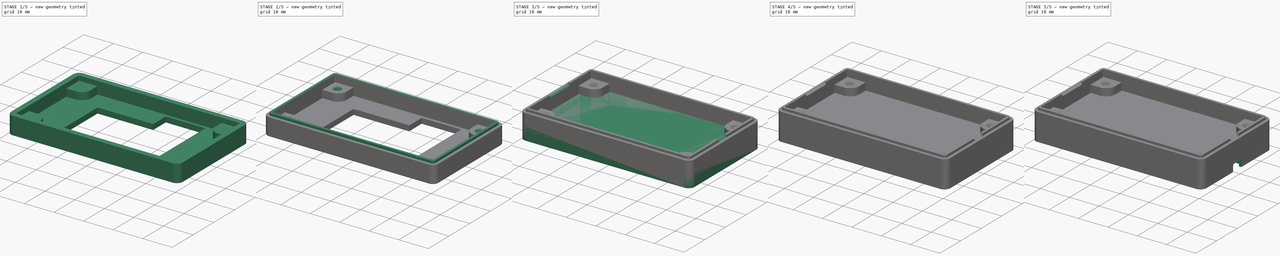
[diagram: build sequence overview — one tinted view per stage of 5, left to right]
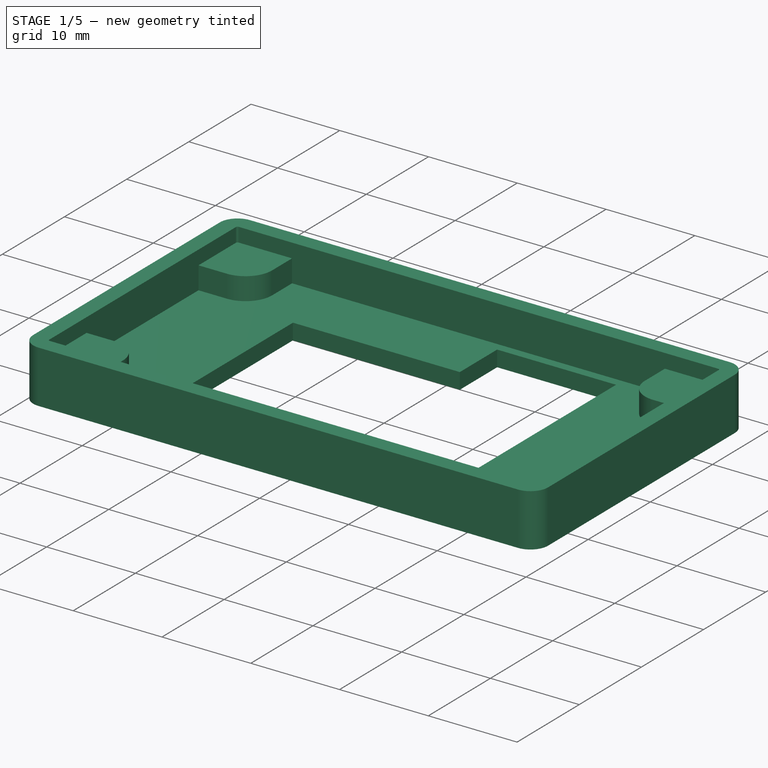
[diagram: stage 1 of 5 — iso view after this stage's code; geometry added in this stage tinted green]
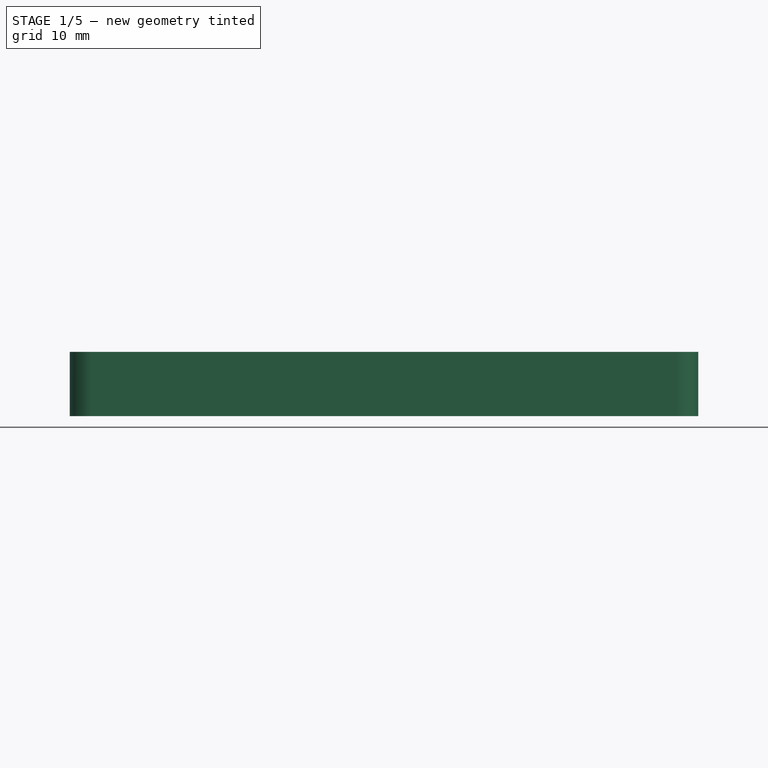
[diagram: stage 1 of 5 — front view after this stage's code; geometry added in this stage tinted green]
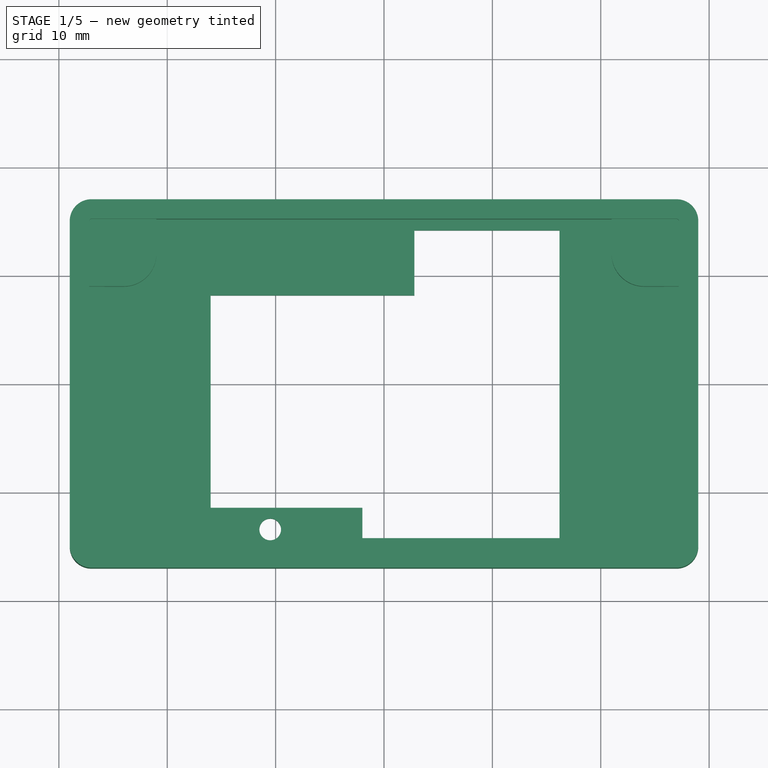
[diagram: stage 1 of 5 — top view after this stage's code; geometry added in this stage tinted green]
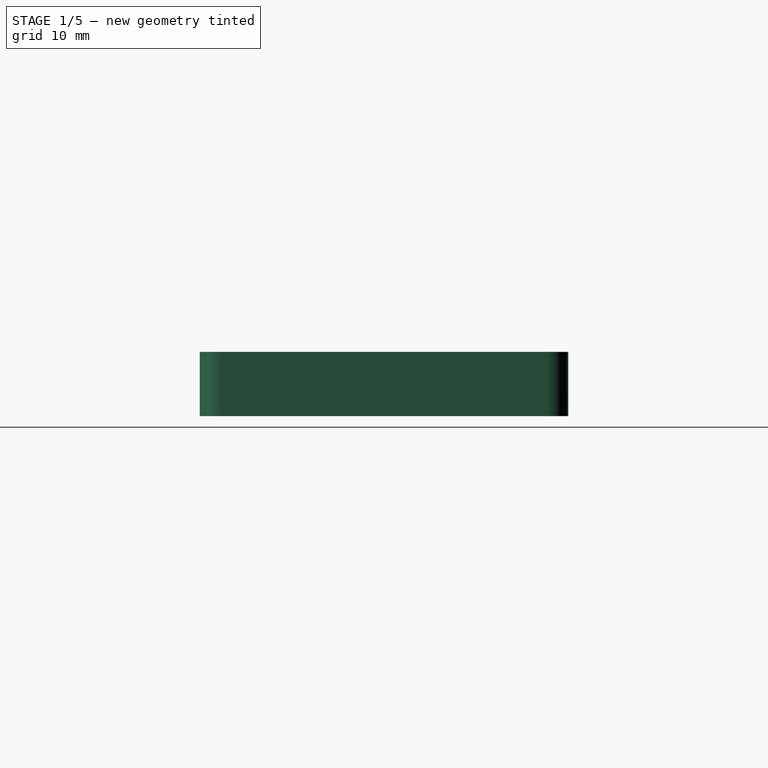
[diagram: stage 1 of 5 — right view after this stage's code; geometry added in this stage tinted green]
FCSTD DOCUMENT  (FreeCAD 1.0R39319 (Git))
Label: Shell_for_AE-RELAY953B-5V
License: All rights reserved
LicenseURL: https://en.wikipedia.org/wiki/All_rights_reserved
objects: Sketcher::SketchObject×16, PartDesign::Pad×9, PartDesign::Pocket×5, PartDesign::Hole×2, PartDesign::Fillet×2, PartDesign::Body×2
note: 88 computed .brp shape members not serialized (recipe doc carries the construction recipe); baked Part::Feature solids carry a one-line shape summary decoded from their .brp

FEATURE [Sketcher::SketchObject] Sketch
  ArcFitTolerance = 1e-06
  AttachmentSupport = -> [XY_Plane]
  FullyConstrained = true
  MakeInternals = false
  MapMode = 5
  sketch-geometry (20):
    g0: LineSegment [constr] StartX=-24 StartY=-12 StartZ=0 EndX=24 EndY=-12 EndZ=0
    g1: LineSegment [constr] StartX=24 StartY=-12 StartZ=0 EndX=24 EndY=12 EndZ=0
    g2: LineSegment [constr] StartX=24 StartY=12 StartZ=0 EndX=-24 EndY=12 EndZ=0
    g3: LineSegment [constr] StartX=-24 StartY=12 StartZ=0 EndX=-24 EndY=-12 EndZ=0
    g4: GeomPoint [constr] X=0 Y=0 Z=0
    g5: LineSegment [constr] StartX=-27 StartY=-15 StartZ=0 EndX=27 EndY=-15 EndZ=0
    g6: LineSegment [constr] StartX=27 StartY=-15 StartZ=0 EndX=27 EndY=15 EndZ=0
    g7: LineSegment [constr] StartX=27 StartY=15 StartZ=0 EndX=-27 EndY=15 EndZ=0
    g8: LineSegment [constr] StartX=-27 StartY=15 StartZ=0 EndX=-27 EndY=-15 EndZ=0
    g9: GeomPoint [constr] X=0 Y=0 Z=0
    g10: LineSegment StartX=-27 StartY=-17 StartZ=0 EndX=27 EndY=-17 EndZ=0
    g11: LineSegment StartX=29 StartY=-15 StartZ=0 EndX=29 EndY=15 EndZ=0
    g12: LineSegment StartX=27 StartY=17 StartZ=0 EndX=-27 EndY=17 EndZ=0
    g13: LineSegment StartX=-29 StartY=15 StartZ=0 EndX=-29 EndY=-15 EndZ=0
    g14: ArcOfCircle CenterX=-27 CenterY=-15 CenterZ=0 NormalX=0 NormalY=0 NormalZ=1 AngleXU=0 Radius=2 StartAngle=3.14159 EndAngle=4.71239
    g15: ArcOfCircle CenterX=27 CenterY=-15 CenterZ=0 NormalX=0 NormalY=0 NormalZ=1 AngleXU=0 Radius=2 StartAngle=4.71239 EndAngle=6.28319
    g16: ArcOfCircle CenterX=27 CenterY=15 CenterZ=0 NormalX=0 NormalY=0 NormalZ=1 AngleXU=0 Radius=2 StartAngle=0 EndAngle=1.5708
    g17: ArcOfCircle CenterX=-27 CenterY=15 CenterZ=0 NormalX=0 NormalY=0 NormalZ=1 AngleXU=0 Radius=2 StartAngle=1.5708 EndAngle=3.14159
    g18: GeomPoint [constr] X=29 Y=17 Z=0
    g19: GeomPoint [constr] X=0 Y=0 Z=0
  constraints (46):
    c: Coincident(g0,g1)
    c: Coincident(g1,g2)
    c: Coincident(g2,g3)
    c: Coincident(g3,g0)
    c: Horizontal(g0)
    c: Horizontal(g2)
    c: Vertical(g1)
    c: Vertical(g3)
    c: Symmetric(g2,g0,g4)
    c: Distance(g1,g3) = 48
    c: Distance(g0,g2) = 24
    c: Coincident(g4,g-1)
    c: Coincident(g5,g6)
    c: Coincident(g6,g7)
    c: Coincident(g7,g8)
    c: Coincident(g8,g5)
    c: Horizontal(g5)
    c: Horizontal(g7)
    c: Vertical(g6)
    c: Vertical(g8)
    c: Symmetric(g7,g5,g9)
    c: Distance(g6,g8) = 54
    c: Distance(g5,g7) = 30
    c: Coincident(g9,g4)
    c: Tangent(g10,g14) = -1.5708
    c: Tangent(g10,g15) = -1.5708
    c: Tangent(g11,g15) = -1.5708
    c: Tangent(g11,g16) = -1.5708
    c: Tangent(g12,g16) = -1.5708
    c: Tangent(g12,g17) = -1.5708
    c: Tangent(g13,g17) = -1.5708
    c: Tangent(g13,g14) = -1.5708
    c: Horizontal(g10)
    c: Horizontal(g12)
    c: Vertical(g11)
    c: Vertical(g13)
    c: Equal(g14,g15)
    c: Equal(g15,g16)
    c: Equal(g16,g17)
    c: Symmetric(g12,g10,g19)
    c: PointOnObject(g18,g11)
    c: PointOnObject(g18,g12)
    c: Distance(g11,g13) = 58
    c: Distance(g10,g12) = 34
    c: Radius(g15) = 2
    c: Coincident(g19,g4)
FEATURE [PartDesign::Pad] Pad
  Direction = (0,0,1)
  Length = 1.8
  Length2 = 10
  Profile = -> Sketch
  ReferenceAxis = -> Sketch [N_Axis]
  Refine = true
  Suppressed = false
  Type = 0
FEATURE [Sketcher::SketchObject] Sketch001
  ArcFitTolerance = 1e-06
  AttachmentSupport = -> [Pad]
  FullyConstrained = false
  MakeInternals = false
  MapMode = 5
  Placement = pos=(0,0,0) rot=(1,0,0;3.14159rad)
  sketch-geometry (29):
    g0: LineSegment [constr] StartX=-27 StartY=-15 StartZ=0 EndX=27 EndY=-15 EndZ=0
    g1: LineSegment [constr] StartX=27 StartY=-15 StartZ=0 EndX=27 EndY=15 EndZ=0
    g2: LineSegment [constr] StartX=27 StartY=15 StartZ=0 EndX=-27 EndY=15 EndZ=0
    g3: LineSegment [constr] StartX=-27 StartY=15 StartZ=0 EndX=-27 EndY=-15 EndZ=0
    g4: GeomPoint [constr] X=0 Y=0 Z=0
    g5: LineSegment [constr] StartX=-27 StartY=15 StartZ=0 EndX=-27 EndY=-15 EndZ=0
    g6: LineSegment [constr] StartX=-27 StartY=-15 StartZ=0 EndX=-16 EndY=-15 EndZ=0
    g7: LineSegment [constr] StartX=-16 StartY=-15 StartZ=0 EndX=-16 EndY=15 EndZ=0
    g8: LineSegment [constr] StartX=-16 StartY=15 StartZ=0 EndX=-27 EndY=15 EndZ=0
    g9: LineSegment [constr] StartX=-16 StartY=-15 StartZ=0 EndX=2.8 EndY=-15 EndZ=0
    g10: LineSegment [constr] StartX=2.8 StartY=-15 StartZ=0 EndX=2.8 EndY=-8.2 EndZ=0
    g11: LineSegment [constr] StartX=2.8 StartY=-8.2 StartZ=0 EndX=-16 EndY=-8.2 EndZ=0
    g12: LineSegment [constr] StartX=-16 StartY=-8.2 StartZ=0 EndX=-16 EndY=-15 EndZ=0
    g13: LineSegment [constr] StartX=-16 StartY=15 StartZ=0 EndX=-16 EndY=11.4 EndZ=0
    g14: LineSegment [constr] StartX=-16 StartY=11.4 StartZ=0 EndX=-2 EndY=11.4 EndZ=0
    g15: LineSegment [constr] StartX=-2 StartY=11.4 StartZ=0 EndX=-2 EndY=15 EndZ=0
    g16: LineSegment [constr] StartX=-2 StartY=15 StartZ=0 EndX=-16 EndY=15 EndZ=0
    g17: GeomPoint [constr] X=16.2 Y=14.2 Z=0
    g18: GeomPoint [constr] X=16.2 Y=-14.2 Z=0
    g19: LineSegment StartX=16.2 StartY=-14.2 StartZ=0 EndX=16.2 EndY=14.2 EndZ=0
    g20: LineSegment StartX=16.2 StartY=14.2 StartZ=0 EndX=-2 EndY=14.2 EndZ=0
    g21: LineSegment StartX=-2 StartY=14.2 StartZ=0 EndX=-2 EndY=11.4 EndZ=0
    g22: LineSegment StartX=-2 StartY=11.4 StartZ=0 EndX=-16 EndY=11.4 EndZ=0
    g23: LineSegment StartX=-16 StartY=11.4 StartZ=0 EndX=-16 EndY=-8.2 EndZ=0
    g24: LineSegment StartX=-16 StartY=-8.2 StartZ=0 EndX=2.8 EndY=-8.2 EndZ=0
    g25: LineSegment StartX=2.8 StartY=-8.2 StartZ=0 EndX=2.8 EndY=-14.2 EndZ=0
    g26: LineSegment StartX=2.8 StartY=-14.2 StartZ=0 EndX=16.2 EndY=-14.2 EndZ=0
    g27: GeomPoint [constr] X=-10.5 Y=13.4 Z=0
    g28: Circle CenterX=-10.5 CenterY=13.4 CenterZ=0 NormalX=0 NormalY=0 NormalZ=1 AngleXU=0 Radius=1
  constraints (68):
    c: Coincident(g0,g1)
    c: Coincident(g1,g2)
    c: Coincident(g2,g3)
    c: Coincident(g3,g0)
    c: Horizontal(g0)
    c: Horizontal(g2)
    c: Vertical(g1)
    c: Vertical(g3)
    c: Symmetric(g2,g0,g4)
    c: Distance(g1,g3) = 54
    c: Distance(g0,g2) = 30
    c: Coincident(g4,g-1)
    c: Coincident(g5,g6)
    c: Coincident(g6,g7)
    c: Coincident(g7,g8)
    c: Coincident(g8,g5)
    c: Vertical(g5)
    c: Vertical(g7)
    c: Horizontal(g6)
    c: Horizontal(g8)
    c: Distance(g5,g7) = 11
    c: Coincident(g5,g2)
    c: PointOnObject(g6,g0)
    c: Coincident(g9,g10)
    c: Coincident(g10,g11)
    c: Coincident(g11,g12)
    c: Coincident(g12,g9)
    c: Horizontal(g9)
    c: Horizontal(g11)
    c: Vertical(g10)
    c: Vertical(g12)
    c: Distance(g10,g12) = 18.8
    c: Distance(g9,g11) = 6.8
    c: Coincident(g9,g6)
    c: Coincident(g13,g14)
    c: Coincident(g14,g15)
    c: Coincident(g15,g16)
    c: Coincident(g16,g13)
    c: Vertical(g13)
    c: Vertical(g15)
    c: Horizontal(g14)
    c: Horizontal(g16)
    c: Distance(g13,g15) = 14
    c: Distance(g14,g16) = 3.6
    c: Coincident(g13,g7)
    c: DistanceX(g17,g1) = 10.8
    c: DistanceY(g1,g17) = -0.8
    c: DistanceX(g18,g0) = 10.8
    c: DistanceY(g18,g0) = -0.8
    c: Coincident(g19,g18)
    c: Coincident(g19,g17)
    c: Perpendicular(g19,g20) = 1.5708
    c: Perpendicular(g20,g21) = 1.5708
    c: Coincident(g21,g22)
    c: Coincident(g22,g13)
    c: Horizontal(g22)
    c: Perpendicular(g22,g23) = 1.5708
    c: Coincident(g23,g24)
    c: Coincident(g24,g10)
    c: Horizontal(g24)
    c: Perpendicular(g24,g25) = 4.71239
    c: Coincident(g25,g26)
    c: Coincident(g26,g18)
    c: Horizontal(g26)
    c: DistanceY(g27,g2) = 1.6
    c: DistanceX(g2,g27) = 16.5
    c: Diameter(g28) = 2
    c: Coincident(g28,g27)
FEATURE [PartDesign::Pocket] Pocket
  BaseFeature = -> Pad
  Direction = (0,0,1)
  Length = 1.8
  Length2 = 5
  Profile = -> Sketch001
  ReferenceAxis = -> Sketch001 [N_Axis]
  Refine = true
  Suppressed = false
  Type = 0
FEATURE [Sketcher::SketchObject] Sketch002
  ArcFitTolerance = 1e-06
  AttachmentSupport = -> [Pocket]
  FullyConstrained = true
  MakeInternals = false
  MapMode = 5
  Placement = pos=(0,0,1.8) rot=(0,0,1;0rad)
  sketch-geometry (18):
    g0: LineSegment StartX=-27 StartY=-17 StartZ=0 EndX=27 EndY=-17 EndZ=0
    g1: LineSegment StartX=29 StartY=-15 StartZ=0 EndX=29 EndY=15 EndZ=0
    g2: LineSegment StartX=27 StartY=17 StartZ=0 EndX=-27 EndY=17 EndZ=0
    g3: LineSegment StartX=-29 StartY=15 StartZ=0 EndX=-29 EndY=-15 EndZ=0
    g4: ArcOfCircle CenterX=-27 CenterY=-15 CenterZ=0 NormalX=0 NormalY=0 NormalZ=1 AngleXU=0 Radius=2 StartAngle=3.14159 EndAngle=4.71239
    g5: ArcOfCircle CenterX=27 CenterY=-15 CenterZ=0 NormalX=0 NormalY=0 NormalZ=1 AngleXU=0 Radius=2 StartAngle=4.71239 EndAngle=6.28319
    g6: ArcOfCircle CenterX=27 CenterY=15 CenterZ=0 NormalX=0 NormalY=0 NormalZ=1 AngleXU=0 Radius=2 StartAngle=0 EndAngle=1.5708
    g7: ArcOfCircle CenterX=-27 CenterY=15 CenterZ=0 NormalX=0 NormalY=0 NormalZ=1 AngleXU=0 Radius=2 StartAngle=1.5708 EndAngle=3.14159
    g8: LineSegment StartX=-27 StartY=-15.2 StartZ=0 EndX=27 EndY=-15.2 EndZ=0
    g9: LineSegment StartX=27.2 StartY=-15 StartZ=0 EndX=27.2 EndY=15 EndZ=0
    g10: LineSegment StartX=27 StartY=15.2 StartZ=0 EndX=-27 EndY=15.2 EndZ=0
    g11: LineSegment StartX=-27.2 StartY=15 StartZ=0 EndX=-27.2 EndY=-15 EndZ=0
    g12: ArcOfCircle CenterX=-27 CenterY=-15 CenterZ=0 NormalX=0 NormalY=0 NormalZ=1 AngleXU=0 Radius=0.2 StartAngle=3.14159 EndAngle=4.71239
    g13: ArcOfCircle CenterX=27 CenterY=-15 CenterZ=0 NormalX=0 NormalY=0 NormalZ=1 AngleXU=0 Radius=0.2 StartAngle=4.71239 EndAngle=6.28319
    g14: ArcOfCircle CenterX=27 CenterY=15 CenterZ=0 NormalX=0 NormalY=0 NormalZ=1 AngleXU=0 Radius=0.2 StartAngle=0 EndAngle=1.5708
    g15: ArcOfCircle CenterX=-27 CenterY=15 CenterZ=0 NormalX=0 NormalY=0 NormalZ=1 AngleXU=0 Radius=0.2 StartAngle=1.5708 EndAngle=3.14159
    g16: GeomPoint [constr] X=29 Y=17 Z=0
    g17: GeomPoint [constr] X=0 Y=0 Z=0
  constraints (38):
    c: Tangent(g0,g4) = -1.5708
    c: Tangent(g0,g5) = -1.5708
    c: Tangent(g1,g5) = -1.5708
    c: Tangent(g1,g6) = -1.5708
    c: Tangent(g2,g6) = -1.5708
    c: Tangent(g2,g7) = -1.5708
    c: Tangent(g3,g7) = -1.5708
    c: Tangent(g3,g4) = -1.5708
    c: Horizontal(g0)
    c: Horizontal(g2)
    c: Vertical(g1)
    c: Vertical(g3)
    c: Equal(g4,g5)
    c: Equal(g5,g6)
    c: Equal(g6,g7)
    c: Tangent(g8,g12) = -1.5708
    c: Tangent(g8,g13) = -1.5708
    c: Tangent(g9,g13) = -1.5708
    c: Tangent(g9,g14) = -1.5708
    c: Tangent(g10,g14) = -1.5708
    c: Tangent(g10,g15) = -1.5708
    c: Tangent(g11,g15) = -1.5708
    c: Tangent(g11,g12) = -1.5708
    c: Coincident(g4,g12)
    c: Coincident(g5,g13)
    c: Coincident(g6,g14)
    c: Coincident(g7,g15)
    c: Horizontal(g8)
    c: Horizontal(g10)
    c: Vertical(g9)
    c: Symmetric(g2,g0,g17)
    c: PointOnObject(g16,g1)
    c: PointOnObject(g16,g2)
    c: Distance(g1,g3) = 58
    c: Distance(g0,g2) = 34
    c: Radius(g5) = 2
    c: Distance(g8,g0) = 1.8
    c: Coincident(g17,g-1)
FEATURE [PartDesign::Pad] Pad001
  BaseFeature = -> Pocket
  Direction = (0,0,1)
  Length = 4.14
  Length2 = 10
  Profile = -> Sketch002
  ReferenceAxis = -> Sketch002 [N_Axis]
  Refine = true
  Suppressed = false
  Type = 0
FEATURE [Sketcher::SketchObject] Sketch003
  ArcFitTolerance = 1e-06
  AttachmentSupport = -> [Pad001]
  FullyConstrained = false
  MakeInternals = false
  MapMode = 5
  Placement = pos=(0,0,1.8) rot=(0,0,1;0rad)
  sketch-geometry (31):
    g0: LineSegment [constr] StartX=-27 StartY=-15 StartZ=0 EndX=27 EndY=-15 EndZ=0
    g1: LineSegment [constr] StartX=27 StartY=-15 StartZ=0 EndX=27 EndY=15 EndZ=0
    g2: LineSegment [constr] StartX=27 StartY=15 StartZ=0 EndX=-27 EndY=15 EndZ=0
    g3: LineSegment [constr] StartX=-27 StartY=15 StartZ=0 EndX=-27 EndY=-15 EndZ=0
    g4: GeomPoint [constr] X=0 Y=0 Z=0
    g5: LineSegment [constr] StartX=-24 StartY=-12 StartZ=0 EndX=24 EndY=-12 EndZ=0
    g6: LineSegment [constr] StartX=24 StartY=-12 StartZ=0 EndX=24 EndY=12 EndZ=0
    g7: LineSegment [constr] StartX=24 StartY=12 StartZ=0 EndX=-24 EndY=12 EndZ=0
    g8: LineSegment [constr] StartX=-24 StartY=12 StartZ=0 EndX=-24 EndY=-12 EndZ=0
    g9: GeomPoint [constr] X=0 Y=0 Z=0
    g10: Circle [constr] CenterX=-24 CenterY=-12 CenterZ=0 NormalX=0 NormalY=0 NormalZ=1 AngleXU=0 Radius=3.00003
    g11: LineSegment StartX=-21 StartY=-15.2189 StartZ=0 EndX=-21 EndY=-12.0019 EndZ=0
    g12: ArcOfCircle CenterX=-24.0019 CenterY=-12.0019 CenterZ=0 NormalX=0 NormalY=0 NormalZ=1 AngleXU=0 Radius=3.00197 StartAngle=0 EndAngle=1.57157
    g13: LineSegment StartX=-24.0043 StartY=-8.99998 StartZ=0 EndX=-27.2225 EndY=-9.00247 EndZ=0
    g14: LineSegment StartX=-27.2225 StartY=-9.00247 StartZ=0 EndX=-27.2177 EndY=-15.2189 EndZ=0
    g15: LineSegment StartX=-27.2177 StartY=-15.2189 StartZ=0 EndX=-21 EndY=-15.2189 EndZ=0
    g16: LineSegment StartX=21 StartY=-15.2189 StartZ=0 EndX=21 EndY=-12.0019 EndZ=0
    g17: ArcOfCircle CenterX=24.0019 CenterY=-12.0019 CenterZ=0 NormalX=0 NormalY=0 NormalZ=1 AngleXU=0 Radius=3.00197 StartAngle=1.57002 EndAngle=3.14159
    g18: LineSegment StartX=24.0043 StartY=-8.99998 StartZ=0 EndX=27.2225 EndY=-9.00247 EndZ=0
    g19: LineSegment StartX=27.2225 StartY=-9.00247 StartZ=0 EndX=27.2177 EndY=-15.2189 EndZ=0
    g20: LineSegment StartX=27.2177 StartY=-15.2189 StartZ=0 EndX=21 EndY=-15.2189 EndZ=0
    g21: LineSegment StartX=-21 StartY=15.2189 StartZ=0 EndX=-21 EndY=12.0019 EndZ=0
    g22: ArcOfCircle CenterX=-24.0019 CenterY=12.0019 CenterZ=0 NormalX=0 NormalY=0 NormalZ=1 AngleXU=0 Radius=3.00197 StartAngle=4.71161 EndAngle=6.28319
    g23: LineSegment StartX=-24.0043 StartY=8.99998 StartZ=0 EndX=-27.2225 EndY=9.00247 EndZ=0
    g24: LineSegment StartX=-27.2225 StartY=9.00247 StartZ=0 EndX=-27.2177 EndY=15.2189 EndZ=0
    g25: LineSegment StartX=-27.2177 StartY=15.2189 StartZ=0 EndX=-21 EndY=15.2189 EndZ=0
    g26: LineSegment StartX=21 StartY=15.2189 StartZ=0 EndX=21 EndY=12.0019 EndZ=0
    g27: ArcOfCircle CenterX=24.0019 CenterY=12.0019 CenterZ=0 NormalX=0 NormalY=0 NormalZ=1 AngleXU=0 Radius=3.00197 StartAngle=3.14159 EndAngle=4.71316
    g28: LineSegment StartX=24.0043 StartY=8.99998 StartZ=0 EndX=27.2225 EndY=9.00247 EndZ=0
    g29: LineSegment StartX=27.2225 StartY=9.00247 StartZ=0 EndX=27.2177 EndY=15.2189 EndZ=0
    g30: LineSegment StartX=27.2177 StartY=15.2189 StartZ=0 EndX=21 EndY=15.2189 EndZ=0
  constraints (55):
    c: Coincident(g0,g1)
    c: Coincident(g1,g2)
    c: Coincident(g2,g3)
    c: Coincident(g3,g0)
    c: Horizontal(g0)
    c: Horizontal(g2)
    c: Vertical(g1)
    c: Vertical(g3)
    c: Symmetric(g2,g0,g4)
    c: Distance(g1,g3) = 54
    c: Distance(g0,g2) = 30
    c: Coincident(g4,g-1)
    c: Coincident(g5,g6)
    c: Coincident(g6,g7)
    c: Coincident(g7,g8)
    c: Coincident(g8,g5)
    c: Horizontal(g5)
    c: Horizontal(g7)
    c: Vertical(g6)
    c: Vertical(g8)
    c: Symmetric(g7,g5,g9)
    c: Distance(g6,g8) = 48
    c: Distance(g5,g7) = 24
    c: Coincident(g9,g4)
    c: Coincident(g10,g5)
    c: PointOnObject(g11,g10)
    c: Vertical(g11)
    c: Tangent(g11,g12) = -1.5708
    c: PointOnObject(g12,g10)
    c: Tangent(g12,g13) = -1.5708
    c: Perpendicular(g13,g14) = 1.5708
    c: Coincident(g14,g15)
    c: Coincident(g15,g11)
    c: Horizontal(g15)
    c: Vertical(g16)
    c: Tangent(g16,g17) = 1.5708
    c: Tangent(g17,g18) = 1.5708
    c: Perpendicular(g18,g19) = 4.71239
    c: Coincident(g19,g20)
    c: Coincident(g20,g16)
    c: Horizontal(g20)
    c: Vertical(g21)
    c: Tangent(g21,g22) = 1.5708
    c: Tangent(g22,g23) = 1.5708
    c: Perpendicular(g23,g24) = 4.71239
    c: Coincident(g24,g25)
    c: Coincident(g25,g21)
    c: Horizontal(g25)
    c: Vertical(g26)
    c: Tangent(g26,g27) = -1.5708
    c: Tangent(g27,g28) = -1.5708
    c: Perpendicular(g28,g29) = 1.5708
    c: Coincident(g29,g30)
    c: Coincident(g30,g26)
    c: Horizontal(g30)
FEATURE [PartDesign::Pad] Pad002
  BaseFeature = -> Pad001
  Direction = (0,0,1)
  Length = 2.54
  Length2 = 10
  Profile = -> Sketch003
  ReferenceAxis = -> Sketch003 [N_Axis]
  Refine = true
  Suppressed = false
  Type = 0
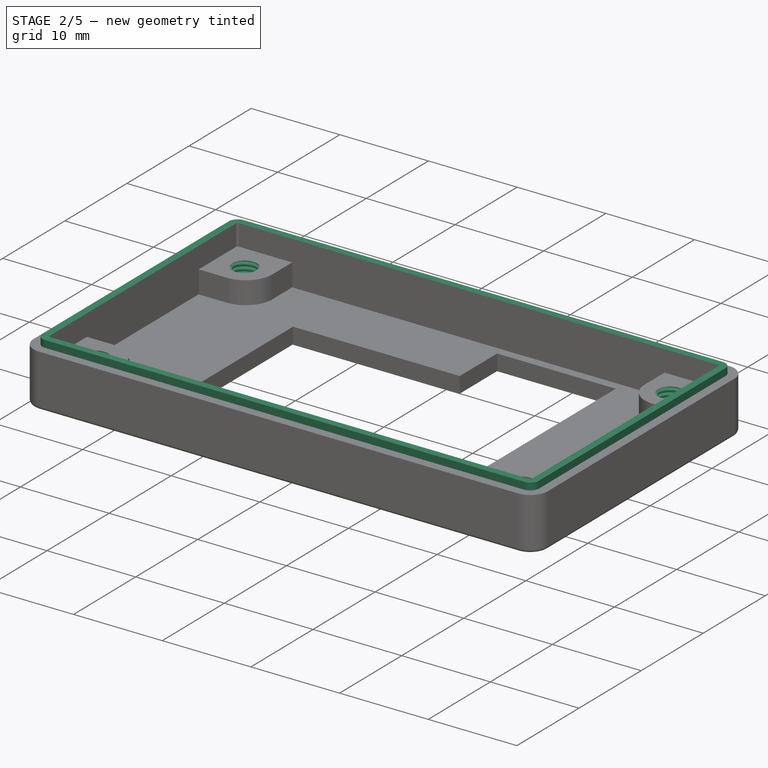
[diagram: stage 2 of 5 — iso view after this stage's code; geometry added in this stage tinted green]
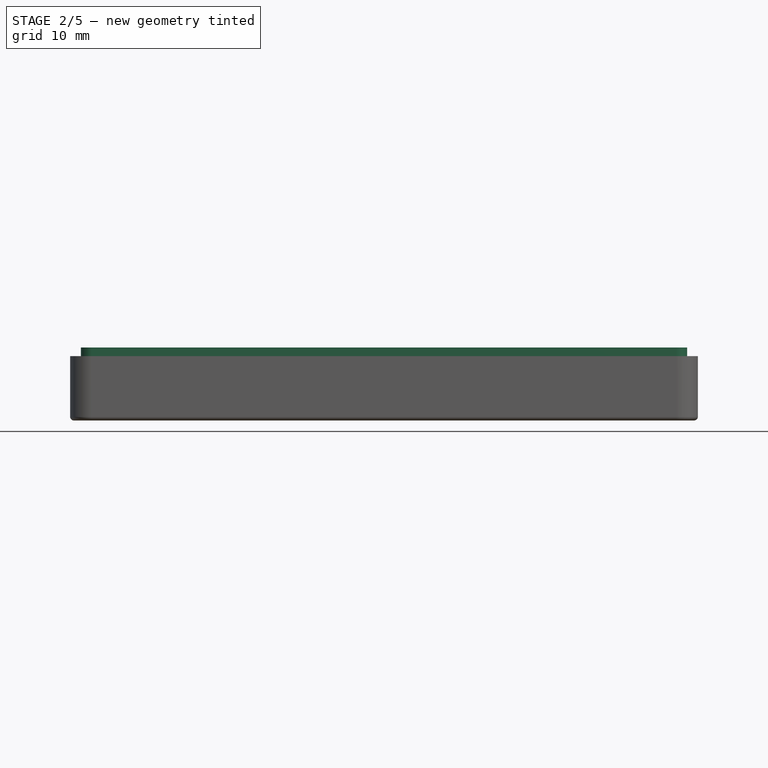
[diagram: stage 2 of 5 — front view after this stage's code; geometry added in this stage tinted green]
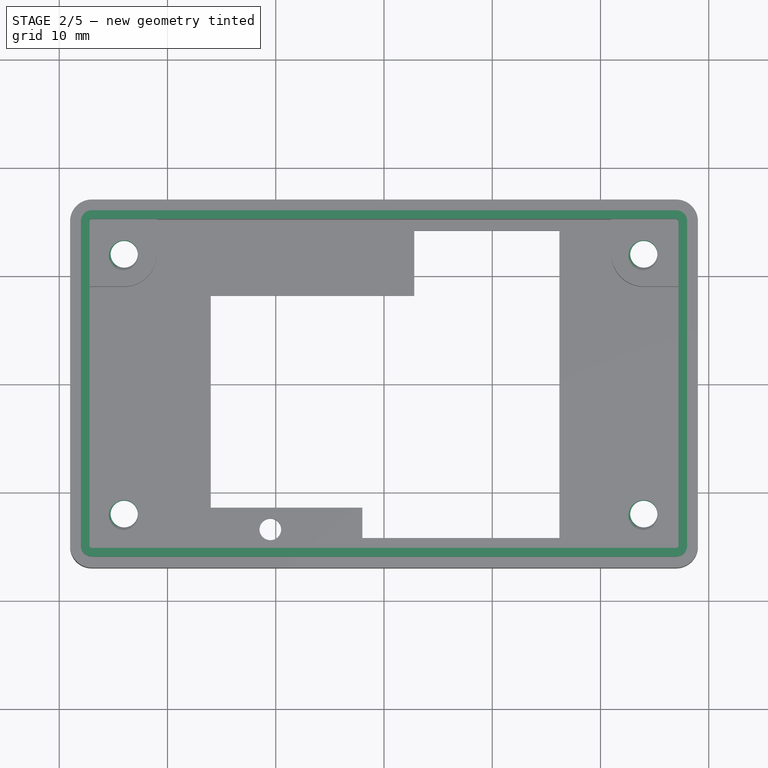
[diagram: stage 2 of 5 — top view after this stage's code; geometry added in this stage tinted green]
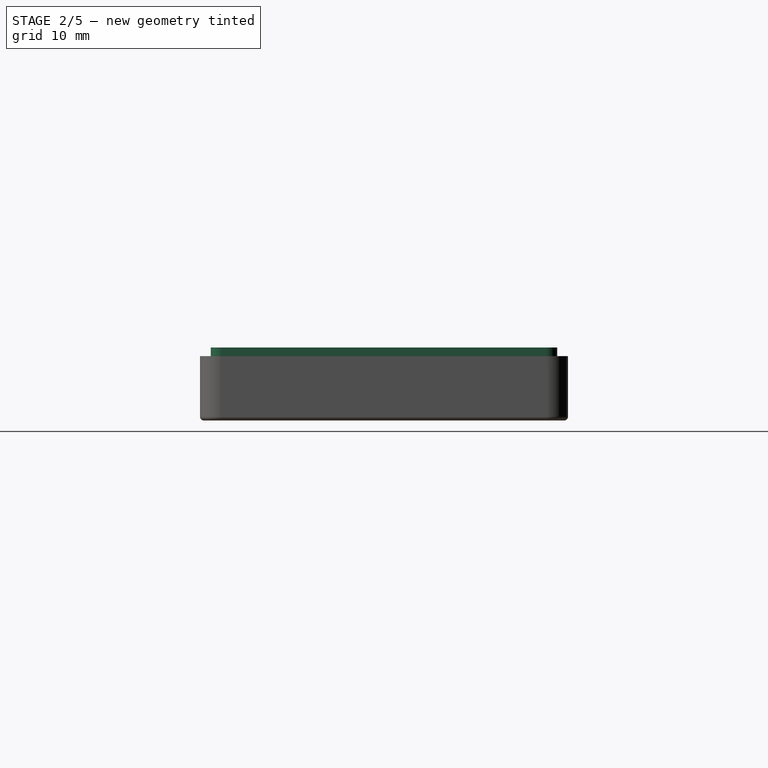
[diagram: stage 2 of 5 — right view after this stage's code; geometry added in this stage tinted green]
FEATURE [Sketcher::SketchObject] Sketch004
  ArcFitTolerance = 1e-06
  AttachmentSupport = -> [Pad002]
  FullyConstrained = true
  MakeInternals = false
  MapMode = 5
  Placement = pos=(0,0,5.94) rot=(0,0,1;0rad)
  sketch-geometry (18):
    g0: LineSegment StartX=-27 StartY=-16 StartZ=0 EndX=27 EndY=-16 EndZ=0
    g1: LineSegment StartX=28 StartY=-15 StartZ=0 EndX=28 EndY=15 EndZ=0
    g2: LineSegment StartX=27 StartY=16 StartZ=0 EndX=-27 EndY=16 EndZ=0
    g3: LineSegment StartX=-28 StartY=15 StartZ=0 EndX=-28 EndY=-15 EndZ=0
    g4: ArcOfCircle CenterX=-27 CenterY=-15 CenterZ=0 NormalX=0 NormalY=0 NormalZ=1 AngleXU=0 Radius=1 StartAngle=3.14159 EndAngle=4.71239
    g5: ArcOfCircle CenterX=27 CenterY=-15 CenterZ=0 NormalX=0 NormalY=0 NormalZ=1 AngleXU=0 Radius=1 StartAngle=4.71239 EndAngle=6.28319
    g6: ArcOfCircle CenterX=27 CenterY=15 CenterZ=0 NormalX=0 NormalY=0 NormalZ=1 AngleXU=0 Radius=1 StartAngle=0 EndAngle=1.5708
    g7: ArcOfCircle CenterX=-27 CenterY=15 CenterZ=0 NormalX=0 NormalY=0 NormalZ=1 AngleXU=0 Radius=1 StartAngle=1.5708 EndAngle=3.14159
    g8: LineSegment StartX=-27 StartY=-15.2 StartZ=0 EndX=27 EndY=-15.2 EndZ=0
    g9: LineSegment StartX=27.2 StartY=-15 StartZ=0 EndX=27.2 EndY=15 EndZ=0
    g10: LineSegment StartX=27 StartY=15.2 StartZ=0 EndX=-27 EndY=15.2 EndZ=0
    g11: LineSegment StartX=-27.2 StartY=15 StartZ=0 EndX=-27.2 EndY=-15 EndZ=0
    g12: ArcOfCircle CenterX=-27 CenterY=-15 CenterZ=0 NormalX=0 NormalY=0 NormalZ=1 AngleXU=0 Radius=0.2 StartAngle=3.14159 EndAngle=4.71239
    g13: ArcOfCircle CenterX=27 CenterY=-15 CenterZ=0 NormalX=0 NormalY=0 NormalZ=1 AngleXU=0 Radius=0.2 StartAngle=4.71239 EndAngle=6.28319
    g14: ArcOfCircle CenterX=27 CenterY=15 CenterZ=0 NormalX=0 NormalY=0 NormalZ=1 AngleXU=0 Radius=0.2 StartAngle=0 EndAngle=1.5708
    g15: ArcOfCircle CenterX=-27 CenterY=15 CenterZ=0 NormalX=0 NormalY=0 NormalZ=1 AngleXU=0 Radius=0.2 StartAngle=1.5708 EndAngle=3.14159
    g16: GeomPoint [constr] X=28 Y=16 Z=0
    g17: GeomPoint [constr] X=-2.94e-14 Y=1.69e-14 Z=0
  constraints (38):
    c: Tangent(g0,g4) = -1.5708
    c: Tangent(g0,g5) = -1.5708
    c: Tangent(g1,g5) = -1.5708
    c: Tangent(g1,g6) = -1.5708
    c: Tangent(g2,g6) = -1.5708
    c: Tangent(g2,g7) = -1.5708
    c: Tangent(g3,g7) = -1.5708
    c: Tangent(g3,g4) = -1.5708
    c: Horizontal(g0)
    c: Horizontal(g2)
    c: Vertical(g1)
    c: Vertical(g3)
    c: Equal(g4,g5)
    c: Equal(g5,g6)
    c: Equal(g6,g7)
    c: Tangent(g8,g12) = -1.5708
    c: Tangent(g8,g13) = -1.5708
    c: Tangent(g9,g13) = -1.5708
    c: Tangent(g9,g14) = -1.5708
    c: Tangent(g10,g14) = -1.5708
    c: Tangent(g10,g15) = -1.5708
    c: Tangent(g11,g15) = -1.5708
    c: Tangent(g11,g12) = -1.5708
    c: Coincident(g4,g12)
    c: Coincident(g5,g13)
    c: Coincident(g6,g14)
    c: Coincident(g7,g15)
    c: Horizontal(g8)
    c: Horizontal(g10)
    c: Vertical(g9)
    c: Symmetric(g2,g0,g17)
    c: PointOnObject(g16,g1)
    c: PointOnObject(g16,g2)
    c: Distance(g1,g3) = 56
    c: Distance(g0,g2) = 32
    c: Radius(g5) = 1
    c: Distance(g8,g0) = 0.8
    c: Coincident(g17,g-1)
FEATURE [PartDesign::Pad] Pad003
  BaseFeature = -> Pad002
  Direction = (0,0,1)
  Length = 0.8
  Length2 = 10
  Profile = -> Sketch004
  ReferenceAxis = -> Sketch004 [N_Axis]
  Refine = true
  Suppressed = false
  Type = 0
FEATURE [Sketcher::SketchObject] Sketch005
  ArcFitTolerance = 1e-06
  AttachmentSupport = -> [Pad003]
  FullyConstrained = true
  MakeInternals = false
  MapMode = 5
  Placement = pos=(0,0,0) rot=(1,0,0;3.14159rad)
  sketch-geometry (9):
    g0: LineSegment [constr] StartX=-24 StartY=-12 StartZ=0 EndX=24 EndY=-12 EndZ=0
    g1: LineSegment [constr] StartX=24 StartY=-12 StartZ=0 EndX=24 EndY=12 EndZ=0
    g2: LineSegment [constr] StartX=24 StartY=12 StartZ=0 EndX=-24 EndY=12 EndZ=0
    g3: LineSegment [constr] StartX=-24 StartY=12 StartZ=0 EndX=-24 EndY=-12 EndZ=0
    g4: GeomPoint [constr] X=0 Y=0 Z=0
    g5: Circle CenterX=-24 CenterY=12 CenterZ=0 NormalX=0 NormalY=0 NormalZ=1 AngleXU=0 Radius=1
    g6: Circle CenterX=-24 CenterY=-12 CenterZ=0 NormalX=0 NormalY=0 NormalZ=1 AngleXU=0 Radius=1
    g7: Circle CenterX=24 CenterY=-12 CenterZ=0 NormalX=0 NormalY=0 NormalZ=1 AngleXU=0 Radius=1
    g8: Circle CenterX=24 CenterY=12 CenterZ=0 NormalX=0 NormalY=0 NormalZ=1 AngleXU=0 Radius=1
  constraints (20):
    c: Coincident(g0,g1)
    c: Coincident(g1,g2)
    c: Coincident(g2,g3)
    c: Coincident(g3,g0)
    c: Horizontal(g0)
    c: Horizontal(g2)
    c: Vertical(g1)
    c: Vertical(g3)
    c: Symmetric(g2,g0,g4)
    c: Distance(g1,g3) = 48
    c: Distance(g0,g2) = 24
    c: Coincident(g4,g-1)
    c: Diameter(g5) = 2
    c: Coincident(g5,g2)
    c: Diameter(g6) = 2
    c: Coincident(g6,g0)
    c: Diameter(g7) = 2
    c: Coincident(g7,g0)
    c: Diameter(g8) = 2
    c: Coincident(g8,g1)
FEATURE [PartDesign::Hole] Hole
  BaseFeature = -> Pad003
  CustomThreadClearance = 0
  Depth = 25
  DepthType = 0
  Diameter = 2.52
  DrillForDepth = false
  DrillPoint = 1
  DrillPointAngle = 118
  HoleCutCountersinkAngle = 90
  HoleCutCustomValues = false
  HoleCutDepth = 0
  HoleCutDiameter = 6.1
  HoleCutType = 0
  ModelThread = true
  Profile = -> Sketch005
  Refine = true
  Suppressed = false
  Tapered = false
  TaperedAngle = 90
  ThreadClass = 0
  ThreadDepth = 25
  ThreadDepthType = 0
  ThreadDirection = 0
  ThreadFit = 0
  ThreadSize = 9
  ThreadType = 1
  Threaded = true
  UseCustomThreadClearance = false
FEATURE [PartDesign::Fillet] Fillet
  Base = -> Hole [Edge8]
  BaseFeature = -> Hole
  Radius = 0.36
  Refine = true
  SupportTransform = false
  Suppressed = false
  UseAllEdges = false
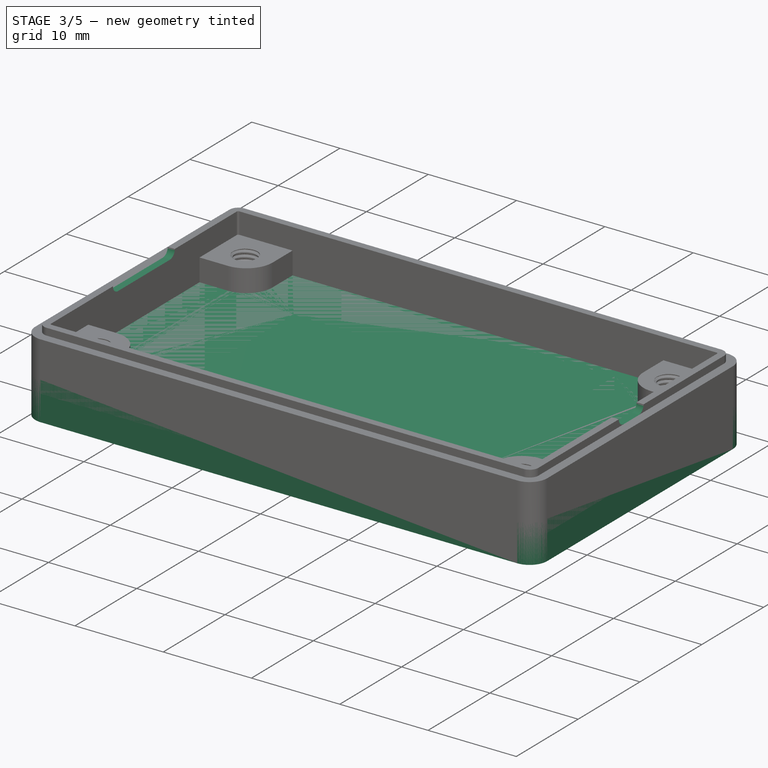
[diagram: stage 3 of 5 — iso view after this stage's code; geometry added in this stage tinted green]
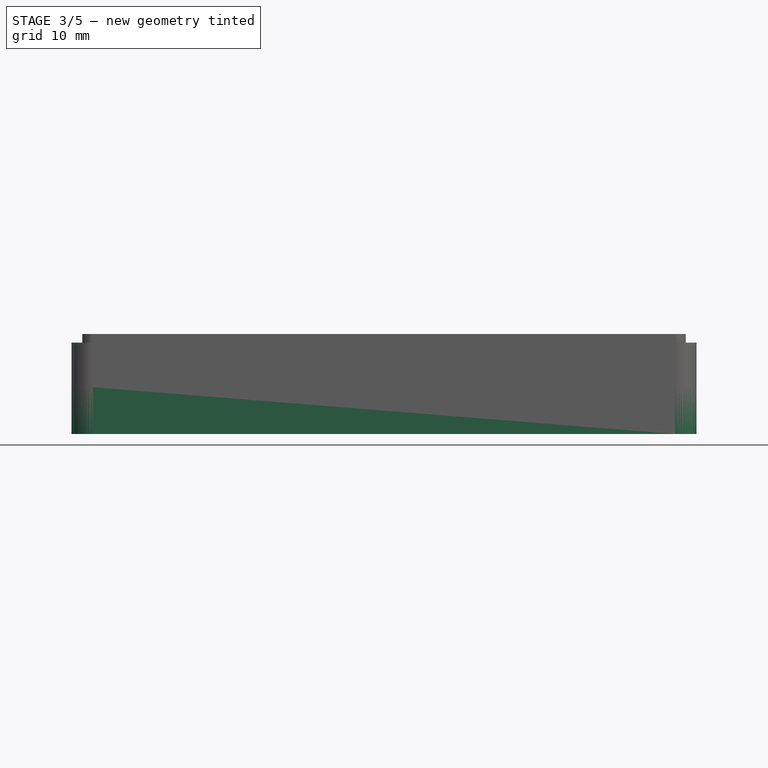
[diagram: stage 3 of 5 — front view after this stage's code; geometry added in this stage tinted green]
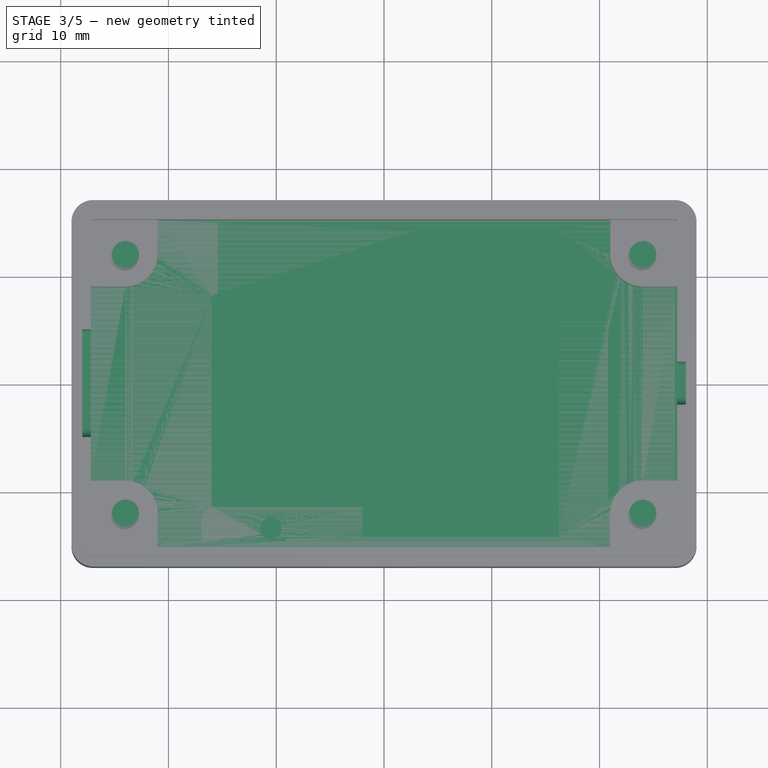
[diagram: stage 3 of 5 — top view after this stage's code; geometry added in this stage tinted green]
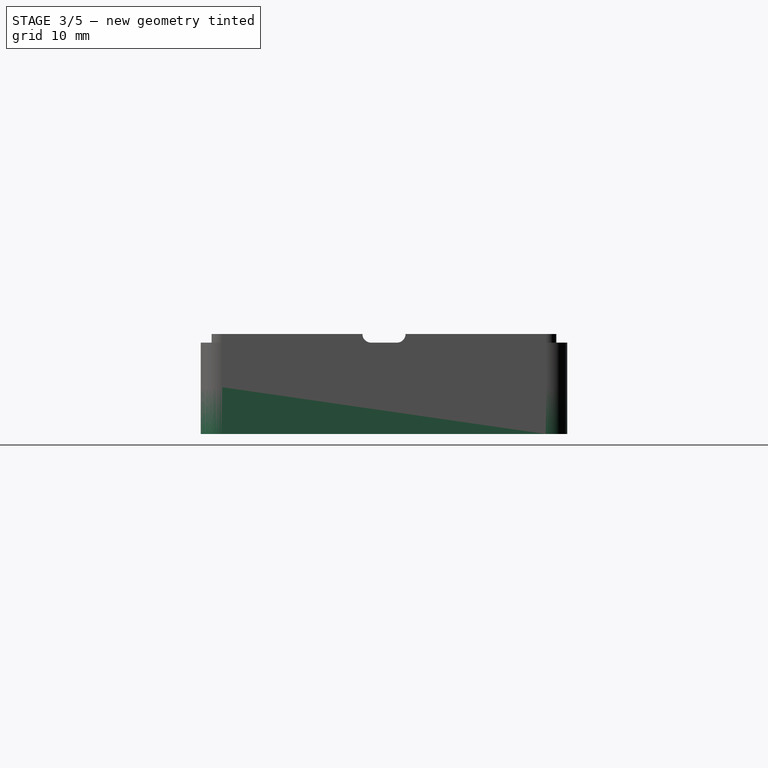
[diagram: stage 3 of 5 — right view after this stage's code; geometry added in this stage tinted green]
FEATURE [Sketcher::SketchObject] Sketch006
  ArcFitTolerance = 1e-06
  AttachmentSupport = -> [XY_Plane001]
  FullyConstrained = true
  MakeInternals = false
  MapMode = 5
  sketch-geometry (10):
    g0: LineSegment StartX=-27 StartY=-17 StartZ=0 EndX=27 EndY=-17 EndZ=0
    g1: LineSegment StartX=29 StartY=-15 StartZ=0 EndX=29 EndY=15 EndZ=0
    g2: LineSegment StartX=27 StartY=17 StartZ=0 EndX=-27 EndY=17 EndZ=0
    g3: LineSegment StartX=-29 StartY=15 StartZ=0 EndX=-29 EndY=-15 EndZ=0
    g4: ArcOfCircle CenterX=-27 CenterY=-15 CenterZ=0 NormalX=0 NormalY=0 NormalZ=1 AngleXU=0 Radius=2 StartAngle=3.14159 EndAngle=4.71239
    g5: ArcOfCircle CenterX=27 CenterY=-15 CenterZ=0 NormalX=0 NormalY=0 NormalZ=1 AngleXU=0 Radius=2 StartAngle=4.71239 EndAngle=6.28319
    g6: ArcOfCircle CenterX=27 CenterY=15 CenterZ=0 NormalX=0 NormalY=0 NormalZ=1 AngleXU=0 Radius=2 StartAngle=0 EndAngle=1.5708
    g7: ArcOfCircle CenterX=-27 CenterY=15 CenterZ=0 NormalX=0 NormalY=0 NormalZ=1 AngleXU=0 Radius=2 StartAngle=1.5708 EndAngle=3.14159
    g8: GeomPoint [constr] X=29 Y=17 Z=0
    g9: GeomPoint [constr] X=0 Y=2.5e-15 Z=0
  constraints (22):
    c: Tangent(g0,g4) = -1.5708
    c: Tangent(g0,g5) = -1.5708
    c: Tangent(g1,g5) = -1.5708
    c: Tangent(g1,g6) = -1.5708
    c: Tangent(g2,g6) = -1.5708
    c: Tangent(g2,g7) = -1.5708
    c: Tangent(g3,g7) = -1.5708
    c: Tangent(g3,g4) = -1.5708
    c: Horizontal(g0)
    c: Horizontal(g2)
    c: Vertical(g1)
    c: Vertical(g3)
    c: Equal(g4,g5)
    c: Equal(g5,g6)
    c: Equal(g6,g7)
    c: Symmetric(g2,g0,g9)
    c: PointOnObject(g8,g1)
    c: PointOnObject(g8,g2)
    c: Distance(g1,g3) = 58
    c: Distance(g0,g2) = 34
    c: Radius(g5) = 2
    c: Coincident(g9,g-1)
FEATURE [PartDesign::Pad] Pad004
  Direction = (0,0,1)
  Length = 1.8
  Length2 = 10
  Profile = -> Sketch006
  ReferenceAxis = -> Sketch006 [N_Axis]
  Refine = true
  Suppressed = false
  Type = 0
FEATURE [Sketcher::SketchObject] Sketch007
  ArcFitTolerance = 1e-06
  AttachmentSupport = -> [Pad004]
  FullyConstrained = true
  MakeInternals = false
  MapMode = 5
  Placement = pos=(0,0,0) rot=(1,0,0;3.14159rad)
  sketch-geometry (18):
    g0: LineSegment StartX=-27 StartY=-17 StartZ=0 EndX=27 EndY=-17 EndZ=0
    g1: LineSegment StartX=29 StartY=-15 StartZ=0 EndX=29 EndY=15 EndZ=0
    g2: LineSegment StartX=27 StartY=17 StartZ=0 EndX=-27 EndY=17 EndZ=0
    g3: LineSegment StartX=-29 StartY=15 StartZ=0 EndX=-29 EndY=-15 EndZ=0
    g4: ArcOfCircle CenterX=-27 CenterY=-15 CenterZ=0 NormalX=0 NormalY=0 NormalZ=1 AngleXU=0 Radius=2 StartAngle=3.14159 EndAngle=4.71239
    g5: ArcOfCircle CenterX=27 CenterY=-15 CenterZ=0 NormalX=0 NormalY=0 NormalZ=1 AngleXU=0 Radius=2 StartAngle=4.71239 EndAngle=6.28319
    g6: ArcOfCircle CenterX=27 CenterY=15 CenterZ=0 NormalX=0 NormalY=0 NormalZ=1 AngleXU=0 Radius=2 StartAngle=0 EndAngle=1.5708
    g7: ArcOfCircle CenterX=-27 CenterY=15 CenterZ=0 NormalX=0 NormalY=0 NormalZ=1 AngleXU=0 Radius=2 StartAngle=1.5708 EndAngle=3.14159
    g8: LineSegment StartX=-27 StartY=-15.2 StartZ=0 EndX=27 EndY=-15.2 EndZ=0
    g9: LineSegment StartX=27.2 StartY=-15 StartZ=0 EndX=27.2 EndY=15 EndZ=0
    g10: LineSegment StartX=27 StartY=15.2 StartZ=0 EndX=-27 EndY=15.2 EndZ=0
    g11: LineSegment StartX=-27.2 StartY=15 StartZ=0 EndX=-27.2 EndY=-15 EndZ=0
    g12: ArcOfCircle CenterX=-27 CenterY=-15 CenterZ=0 NormalX=0 NormalY=0 NormalZ=1 AngleXU=0 Radius=0.2 StartAngle=3.14159 EndAngle=4.71239
    g13: ArcOfCircle CenterX=27 CenterY=-15 CenterZ=0 NormalX=0 NormalY=0 NormalZ=1 AngleXU=0 Radius=0.2 StartAngle=4.71239 EndAngle=6.28319
    g14: ArcOfCircle CenterX=27 CenterY=15 CenterZ=0 NormalX=0 NormalY=0 NormalZ=1 AngleXU=0 Radius=0.2 StartAngle=0 EndAngle=1.5708
    g15: ArcOfCircle CenterX=-27 CenterY=15 CenterZ=0 NormalX=0 NormalY=0 NormalZ=1 AngleXU=0 Radius=0.2 StartAngle=1.5708 EndAngle=3.14159
    g16: GeomPoint [constr] X=29 Y=17 Z=0
    g17: GeomPoint [constr] X=0 Y=0 Z=0
  constraints (38):
    c: Tangent(g0,g4) = -1.5708
    c: Tangent(g0,g5) = -1.5708
    c: Tangent(g1,g5) = -1.5708
    c: Tangent(g1,g6) = -1.5708
    c: Tangent(g2,g6) = -1.5708
    c: Tangent(g2,g7) = -1.5708
    c: Tangent(g3,g7) = -1.5708
    c: Tangent(g3,g4) = -1.5708
    c: Horizontal(g0)
    c: Horizontal(g2)
    c: Vertical(g1)
    c: Vertical(g3)
    c: Equal(g4,g5)
    c: Equal(g5,g6)
    c: Equal(g6,g7)
    c: Tangent(g8,g12) = -1.5708
    c: Tangent(g8,g13) = -1.5708
    c: Tangent(g9,g13) = -1.5708
    c: Tangent(g9,g14) = -1.5708
    c: Tangent(g10,g14) = -1.5708
    c: Tangent(g10,g15) = -1.5708
    c: Tangent(g11,g15) = -1.5708
    c: Tangent(g11,g12) = -1.5708
    c: Coincident(g4,g12)
    c: Coincident(g5,g13)
    c: Coincident(g6,g14)
    c: Coincident(g7,g15)
    c: Horizontal(g8)
    c: Horizontal(g10)
    c: Vertical(g9)
    c: Symmetric(g2,g0,g17)
    c: PointOnObject(g16,g1)
    c: PointOnObject(g16,g2)
    c: Distance(g1,g3) = 58
    c: Distance(g0,g2) = 34
    c: Radius(g5) = 2
    c: Distance(g8,g0) = 1.8
    c: Coincident(g17,g-1)
FEATURE [PartDesign::Pad] Pad005
  BaseFeature = -> Pad004
  Direction = (0,0,-1)
  Length = 2.54
  Length2 = 10
  Profile = -> Sketch007
  ReferenceAxis = -> Sketch007 [N_Axis]
  Refine = true
  Suppressed = false
  Type = 0
FEATURE [PartDesign::Body] Body001  label="Bottom-panel-Body"
  AllowCompound = false
  Group = -> [Sketch006,Pad004,Sketch007,Pad005,Sketch008,Pad006,Sketch009,Pad007,Sketch010,Pad008,Sketch011,Hole001,Fillet001,Sketch012,Pocket001,Sketch013,Pocket002]
  Origin = -> Origin001
  Tip = -> Pocket002
FEATURE [Sketcher::SketchObject] Sketch014
  ArcFitTolerance = 1e-06
  AttachmentSupport = -> [Fillet]
  ExternalGeometry = -> [Fillet]
  FullyConstrained = false
  MakeInternals = false
  MapMode = 5
  Placement = pos=(-28,0,0) rot=(0.57735,-0.57735,-0.57735;2.0944rad)
  sketch-geometry (11):
    g0: GeomPoint [constr] X=0 Y=6.74 Z=0
    g1: LineSegment StartX=-4.2008 StartY=5.94 StartZ=0 EndX=4.2008 EndY=5.94 EndZ=0
    g2: LineSegment StartX=5 StartY=6.7392 StartZ=0 EndX=5 EndY=6.7408 EndZ=0
    g3: LineSegment StartX=4.2008 StartY=7.54 StartZ=0 EndX=-4.2008 EndY=7.54 EndZ=0
    g4: LineSegment StartX=-5 StartY=6.7408 StartZ=0 EndX=-5 EndY=6.7392 EndZ=0
    g5: ArcOfCircle CenterX=-4.2008 CenterY=6.7392 CenterZ=0 NormalX=0 NormalY=0 NormalZ=1 AngleXU=0 Radius=0.7992 StartAngle=3.14159 EndAngle=4.71239
    g6: ArcOfCircle CenterX=4.2008 CenterY=6.7392 CenterZ=0 NormalX=0 NormalY=0 NormalZ=1 AngleXU=0 Radius=0.7992 StartAngle=4.71239 EndAngle=6.28319
    g7: ArcOfCircle CenterX=4.2008 CenterY=6.7408 CenterZ=0 NormalX=0 NormalY=0 NormalZ=1 AngleXU=0 Radius=0.7992 StartAngle=0 EndAngle=1.5708
    g8: ArcOfCircle CenterX=-4.2008 CenterY=6.7408 CenterZ=0 NormalX=0 NormalY=0 NormalZ=1 AngleXU=0 Radius=0.7992 StartAngle=1.5708 EndAngle=3.14159
    g9: GeomPoint [constr] X=5 Y=7.54 Z=0
    g10: GeomPoint [constr] X=0 Y=6.74 Z=0
  constraints (22):
    c: PointOnObject(g0,g-2)
    c: PointOnObject(g0,g-3)
    c: Tangent(g1,g5) = -1.5708
    c: Tangent(g1,g6) = -1.5708
    c: Tangent(g2,g6) = -1.5708
    c: Tangent(g2,g7) = -1.5708
    c: Tangent(g3,g7) = -1.5708
    c: Tangent(g3,g8) = -1.5708
    c: Tangent(g4,g8) = -1.5708
    c: Tangent(g4,g5) = -1.5708
    c: Horizontal(g1)
    c: Horizontal(g3)
    c: Vertical(g2)
    c: Vertical(g4)
    c: Equal(g5,g6)
    c: Equal(g6,g7)
    c: Equal(g7,g8)
    c: Symmetric(g3,g1,g10)
    c: PointOnObject(g9,g2)
    c: PointOnObject(g9,g3)
    c: Distance(g1,g3) = 1.6
    c: Coincident(g10,g0)
FEATURE [PartDesign::Pocket] Pocket003
  BaseFeature = -> Fillet
  Direction = (1,0,0)
  Length = 2
  Length2 = 5
  Profile = -> Sketch014
  ReferenceAxis = -> Sketch014 [N_Axis]
  Refine = true
  Suppressed = false
  Type = 0
FEATURE [Sketcher::SketchObject] Sketch015
  ArcFitTolerance = 1e-06
  AttachmentSupport = -> [Pocket003]
  ExternalGeometry = -> [Pocket003]
  FullyConstrained = false
  MakeInternals = false
  MapMode = 5
  Placement = pos=(28,0,0) rot=(0.57735,0.57735,0.57735;2.0944rad)
  sketch-geometry (11):
    g0: GeomPoint [constr] X=2e-16 Y=6.74 Z=0
    g1: LineSegment StartX=-1.2008 StartY=5.94 StartZ=0 EndX=1.2008 EndY=5.94 EndZ=0
    g2: LineSegment StartX=2 StartY=6.7392 StartZ=0 EndX=2 EndY=6.7408 EndZ=0
    g3: LineSegment StartX=1.2008 StartY=7.54 StartZ=0 EndX=-1.2008 EndY=7.54 EndZ=0
    g4: LineSegment StartX=-2 StartY=6.7408 StartZ=0 EndX=-2 EndY=6.7392 EndZ=0
    g5: ArcOfCircle CenterX=-1.2008 CenterY=6.7392 CenterZ=0 NormalX=0 NormalY=0 NormalZ=1 AngleXU=0 Radius=0.7992 StartAngle=3.14159 EndAngle=4.71239
    g6: ArcOfCircle CenterX=1.2008 CenterY=6.7392 CenterZ=0 NormalX=0 NormalY=0 NormalZ=1 AngleXU=0 Radius=0.7992 StartAngle=4.71239 EndAngle=6.28319
    g7: ArcOfCircle CenterX=1.2008 CenterY=6.7408 CenterZ=0 NormalX=0 NormalY=0 NormalZ=1 AngleXU=0 Radius=0.7992 StartAngle=0 EndAngle=1.5708
    g8: ArcOfCircle CenterX=-1.2008 CenterY=6.7408 CenterZ=0 NormalX=0 NormalY=0 NormalZ=1 AngleXU=0 Radius=0.7992 StartAngle=1.5708 EndAngle=3.14159
    g9: GeomPoint [constr] X=2 Y=7.54 Z=0
    g10: GeomPoint [constr] X=2e-16 Y=6.74 Z=0
  constraints (23):
    c: PointOnObject(g0,g-2)
    c: PointOnObject(g0,g-3)
    c: Tangent(g1,g5) = -1.5708
    c: Tangent(g1,g6) = -1.5708
    c: Tangent(g2,g6) = -1.5708
    c: Tangent(g2,g7) = -1.5708
    c: Tangent(g3,g7) = -1.5708
    c: Tangent(g3,g8) = -1.5708
    c: Tangent(g4,g8) = -1.5708
    c: Tangent(g4,g5) = -1.5708
    c: Horizontal(g1)
    c: Horizontal(g3)
    c: Vertical(g2)
    c: Vertical(g4)
    c: Equal(g5,g6)
    c: Equal(g6,g7)
    c: Equal(g7,g8)
    c: Symmetric(g3,g1,g10)
    c: PointOnObject(g9,g2)
    c: PointOnObject(g9,g3)
    c: Distance(g2,g4) = 4
    c: Distance(g1,g3) = 1.6
    c: Coincident(g10,g0)
FEATURE [PartDesign::Pocket] Pocket004
  BaseFeature = -> Pocket003
  Direction = (-1,0,0)
  Length = 2
  Length2 = 5
  Profile = -> Sketch015
  ReferenceAxis = -> Sketch015 [N_Axis]
  Refine = true
  Suppressed = false
  Type = 0
FEATURE [PartDesign::Body] Body  label="Top-Cover-Body"
  AllowCompound = false
  Group = -> [Sketch,Pad,Sketch001,Pocket,Sketch002,Pad001,Sketch003,Pad002,Sketch004,Pad003,Sketch005,Hole,Fillet,Sketch014,Pocket003,Sketch015,Pocket004]
  Origin = -> Origin
  Placement = pos=(0,0,-25) rot=(0,0,1;0rad)
  Tip = -> Pocket004
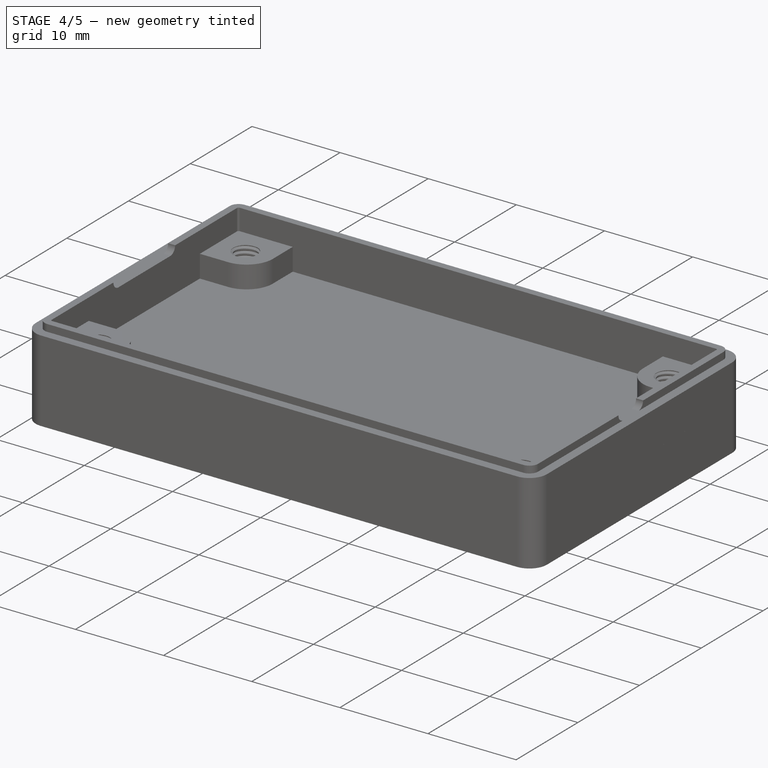
[diagram: stage 4 of 5 — iso view after this stage's code; geometry added in this stage tinted green]
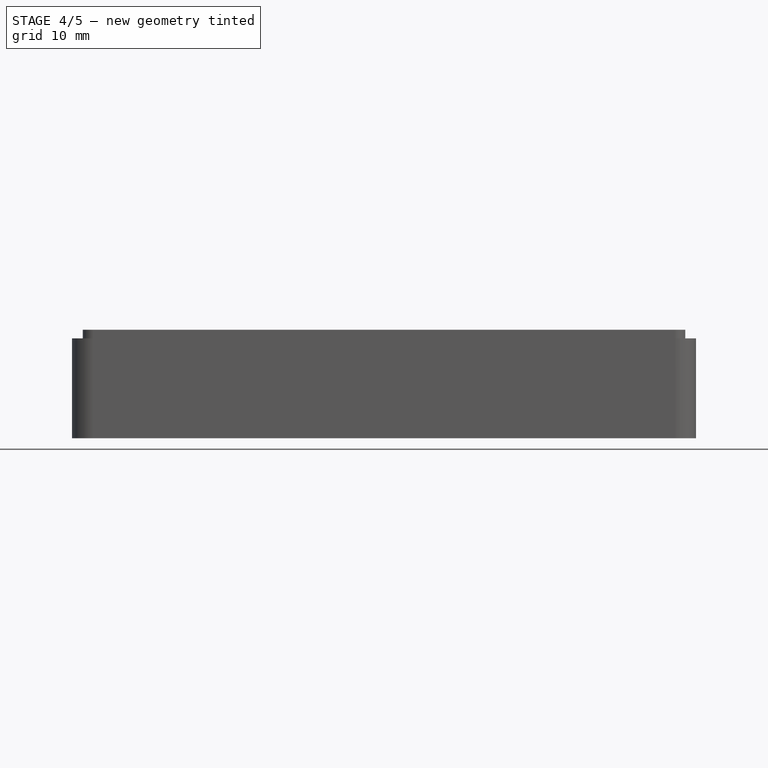
[diagram: stage 4 of 5 — front view after this stage's code; geometry added in this stage tinted green]
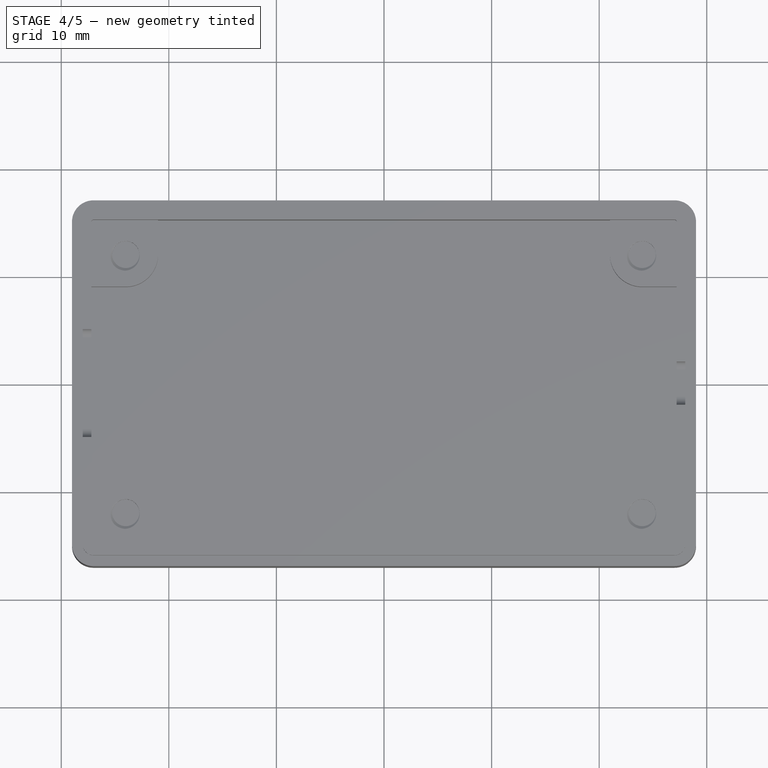
[diagram: stage 4 of 5 — top view after this stage's code; geometry added in this stage tinted green]
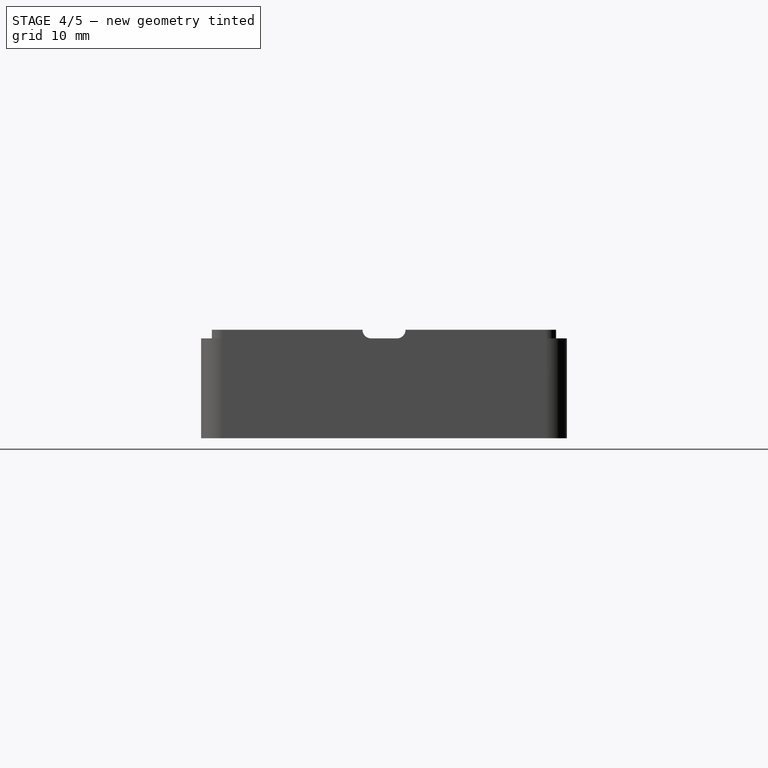
[diagram: stage 4 of 5 — right view after this stage's code; geometry added in this stage tinted green]
FEATURE [Sketcher::SketchObject] Sketch008
  ArcFitTolerance = 1e-06
  AttachmentSupport = -> [Pad005]
  FullyConstrained = true
  MakeInternals = false
  MapMode = 5
  Placement = pos=(0,0,-2.54) rot=(1,0,0;3.14159rad)
  sketch-geometry (18):
    g0: LineSegment StartX=-27 StartY=-17 StartZ=0 EndX=27 EndY=-17 EndZ=0
    g1: LineSegment StartX=29 StartY=-15 StartZ=0 EndX=29 EndY=15 EndZ=0
    g2: LineSegment StartX=27 StartY=17 StartZ=0 EndX=-27 EndY=17 EndZ=0
    g3: LineSegment StartX=-29 StartY=15 StartZ=0 EndX=-29 EndY=-15 EndZ=0
    g4: ArcOfCircle CenterX=-27 CenterY=-15 CenterZ=0 NormalX=0 NormalY=0 NormalZ=1 AngleXU=0 Radius=2 StartAngle=3.14159 EndAngle=4.71239
    g5: ArcOfCircle CenterX=27 CenterY=-15 CenterZ=0 NormalX=0 NormalY=0 NormalZ=1 AngleXU=0 Radius=2 StartAngle=4.71239 EndAngle=6.28319
    g6: ArcOfCircle CenterX=27 CenterY=15 CenterZ=0 NormalX=0 NormalY=0 NormalZ=1 AngleXU=0 Radius=2 StartAngle=0 EndAngle=1.5708
    g7: ArcOfCircle CenterX=-27 CenterY=15 CenterZ=0 NormalX=0 NormalY=0 NormalZ=1 AngleXU=0 Radius=2 StartAngle=1.5708 EndAngle=3.14159
    g8: LineSegment StartX=-27 StartY=-16.2 StartZ=0 EndX=27 EndY=-16.2 EndZ=0
    g9: LineSegment StartX=28.2 StartY=-15 StartZ=0 EndX=28.2 EndY=15 EndZ=0
    g10: LineSegment StartX=27 StartY=16.2 StartZ=0 EndX=-27 EndY=16.2 EndZ=0
    g11: LineSegment StartX=-28.2 StartY=15 StartZ=0 EndX=-28.2 EndY=-15 EndZ=0
    g12: ArcOfCircle CenterX=-27 CenterY=-15 CenterZ=0 NormalX=0 NormalY=0 NormalZ=1 AngleXU=0 Radius=1.2 StartAngle=3.14159 EndAngle=4.71239
    g13: ArcOfCircle CenterX=27 CenterY=-15 CenterZ=0 NormalX=0 NormalY=0 NormalZ=1 AngleXU=0 Radius=1.2 StartAngle=4.71239 EndAngle=6.28319
    g14: ArcOfCircle CenterX=27 CenterY=15 CenterZ=0 NormalX=0 NormalY=0 NormalZ=1 AngleXU=0 Radius=1.2 StartAngle=0 EndAngle=1.5708
    g15: ArcOfCircle CenterX=-27 CenterY=15 CenterZ=0 NormalX=0 NormalY=0 NormalZ=1 AngleXU=0 Radius=1.2 StartAngle=1.5708 EndAngle=3.14159
    g16: GeomPoint [constr] X=29 Y=17 Z=0
    g17: GeomPoint [constr] X=0 Y=0 Z=0
  constraints (38):
    c: Tangent(g0,g4) = -1.5708
    c: Tangent(g0,g5) = -1.5708
    c: Tangent(g1,g5) = -1.5708
    c: Tangent(g1,g6) = -1.5708
    c: Tangent(g2,g6) = -1.5708
    c: Tangent(g2,g7) = -1.5708
    c: Tangent(g3,g7) = -1.5708
    c: Tangent(g3,g4) = -1.5708
    c: Horizontal(g0)
    c: Horizontal(g2)
    c: Vertical(g1)
    c: Vertical(g3)
    c: Equal(g4,g5)
    c: Equal(g5,g6)
    c: Equal(g6,g7)
    c: Tangent(g8,g12) = -1.5708
    c: Tangent(g8,g13) = -1.5708
    c: Tangent(g9,g13) = -1.5708
    c: Tangent(g9,g14) = -1.5708
    c: Tangent(g10,g14) = -1.5708
    c: Tangent(g10,g15) = -1.5708
    c: Tangent(g11,g15) = -1.5708
    c: Tangent(g11,g12) = -1.5708
    c: Coincident(g4,g12)
    c: Coincident(g5,g13)
    c: Coincident(g6,g14)
    c: Coincident(g7,g15)
    c: Horizontal(g8)
    c: Horizontal(g10)
    c: Vertical(g9)
    c: Symmetric(g2,g0,g17)
    c: PointOnObject(g16,g1)
    c: PointOnObject(g16,g2)
    c: Distance(g1,g3) = 58
    c: Distance(g0,g2) = 34
    c: Radius(g5) = 2
    c: Distance(g8,g0) = 0.8
    c: Coincident(g17,g-1)
FEATURE [PartDesign::Pad] Pad006
  BaseFeature = -> Pad005
  Direction = (0,0,-1)
  Length = 0.8
  Length2 = 10
  Profile = -> Sketch008
  ReferenceAxis = -> Sketch008 [N_Axis]
  Refine = true
  Suppressed = false
  Type = 0
FEATURE [Sketcher::SketchObject] Sketch009
  ArcFitTolerance = 1e-06
  AttachmentSupport = -> [Pad006]
  FullyConstrained = false
  MakeInternals = false
  MapMode = 5
  Placement = pos=(0,0,0) rot=(1,0,0;3.14159rad)
  sketch-geometry (31):
    g0: LineSegment [constr] StartX=-24 StartY=-12 StartZ=0 EndX=24 EndY=-12 EndZ=0
    g1: LineSegment [constr] StartX=24 StartY=-12 StartZ=0 EndX=24 EndY=12 EndZ=0
    g2: LineSegment [constr] StartX=24 StartY=12 StartZ=0 EndX=-24 EndY=12 EndZ=0
    g3: LineSegment [constr] StartX=-24 StartY=12 StartZ=0 EndX=-24 EndY=-12 EndZ=0
    g4: GeomPoint [constr] X=0 Y=0 Z=0
    g5: Circle [constr] CenterX=-24 CenterY=12 CenterZ=0 NormalX=0 NormalY=0 NormalZ=1 AngleXU=0 Radius=3
    g6: GeomPoint [constr] X=-24.0083 Y=9.00001 Z=0
    g7: GeomPoint [constr] X=-21 Y=12.0049 Z=0
    g8: GeomPoint [constr] X=-27.2 Y=15.2 Z=0
    g9: GeomPoint [constr] X=-27.2083 Y=9.00001 Z=0
    g10: GeomPoint [constr] X=-21 Y=15.2049 Z=0
    g11: LineSegment StartX=-27.2083 StartY=9.00001 StartZ=0 EndX=-24.0083 EndY=9.00001 EndZ=0
    g12: ArcOfCircle CenterX=-24.0083 CenterY=12.0083 CenterZ=0 NormalX=0 NormalY=0 NormalZ=1 AngleXU=0 Radius=3.00828 StartAngle=4.71239 EndAngle=6.28206
    g13: LineSegment StartX=-21 StartY=12.0049 StartZ=0 EndX=-20.9964 EndY=15.2 EndZ=0
    g14: LineSegment StartX=-20.9964 StartY=15.2 StartZ=0 EndX=-27.2 EndY=15.2 EndZ=0
    g15: LineSegment StartX=-27.2 StartY=15.2 StartZ=0 EndX=-27.2083 EndY=9.00001 EndZ=0
    g16: LineSegment StartX=27.2083 StartY=9.00001 StartZ=0 EndX=24.0083 EndY=9.00001 EndZ=0
    g17: ArcOfCircle CenterX=24.0083 CenterY=12.0083 CenterZ=0 NormalX=0 NormalY=0 NormalZ=1 AngleXU=0 Radius=3.00828 StartAngle=3.14272 EndAngle=4.71239
    g18: LineSegment StartX=21 StartY=12.0049 StartZ=0 EndX=20.9964 EndY=15.2 EndZ=0
    g19: LineSegment StartX=20.9964 StartY=15.2 StartZ=0 EndX=27.2 EndY=15.2 EndZ=0
    g20: LineSegment StartX=27.2 StartY=15.2 StartZ=0 EndX=27.2083 EndY=9.00001 EndZ=0
    g21: LineSegment StartX=-27.2083 StartY=-9.00001 StartZ=0 EndX=-24.0083 EndY=-9.00001 EndZ=0
    g22: ArcOfCircle CenterX=-24.0083 CenterY=-12.0083 CenterZ=0 NormalX=0 NormalY=0 NormalZ=1 AngleXU=0 Radius=3.00828 StartAngle=0.00112868 EndAngle=1.5708
    g23: LineSegment StartX=-21 StartY=-12.0049 StartZ=0 EndX=-20.9964 EndY=-15.2 EndZ=0
    g24: LineSegment StartX=-20.9964 StartY=-15.2 StartZ=0 EndX=-27.2 EndY=-15.2 EndZ=0
    g25: LineSegment StartX=-27.2 StartY=-15.2 StartZ=0 EndX=-27.2083 EndY=-9.00001 EndZ=0
    g26: LineSegment StartX=27.2083 StartY=-9.00001 StartZ=0 EndX=24.0083 EndY=-9.00001 EndZ=0
    g27: ArcOfCircle CenterX=24.0083 CenterY=-12.0083 CenterZ=0 NormalX=0 NormalY=0 NormalZ=1 AngleXU=0 Radius=3.00828 StartAngle=1.5708 EndAngle=3.14046
    g28: LineSegment StartX=21 StartY=-12.0049 StartZ=0 EndX=20.9964 EndY=-15.2 EndZ=0
    g29: LineSegment StartX=20.9964 StartY=-15.2 StartZ=0 EndX=27.2 EndY=-15.2 EndZ=0
    g30: LineSegment StartX=27.2 StartY=-15.2 StartZ=0 EndX=27.2083 EndY=-9.00001 EndZ=0
  constraints (54):
    c: Coincident(g0,g1)
    c: Coincident(g1,g2)
    c: Coincident(g2,g3)
    c: Coincident(g3,g0)
    c: Horizontal(g0)
    c: Horizontal(g2)
    c: Vertical(g1)
    c: Vertical(g3)
    c: Symmetric(g2,g0,g4)
    c: Distance(g1,g3) = 48
    c: Distance(g0,g2) = 24
    c: Coincident(g4,g-1)
    c: Diameter(g5) = 6
    c: Coincident(g5,g2)
    c: PointOnObject(g6,g5)
    c: PointOnObject(g7,g5)
    c: DistanceX(g6) = -24.0083
    c: DistanceX(g7) = -21
    c: DistanceY(g7,g10) = 3.2
    c: DistanceX(g9,g6) = 3.2
    c: DistanceX(g8,g2) = 3.2
    c: DistanceY(g2,g8) = 3.2
    c: Coincident(g11,g9)
    c: Coincident(g11,g6)
    c: Horizontal(g11)
    c: Tangent(g11,g12) = -1.5708
    c: Coincident(g12,g7)
    c: Tangent(g12,g13) = -1.5708
    c: Coincident(g13,g14)
    c: Coincident(g14,g8)
    c: Horizontal(g14)
    c: Coincident(g14,g15)
    c: Coincident(g15,g11)
    c: Horizontal(g16)
    c: Tangent(g16,g17) = 1.5708
    c: Tangent(g17,g18) = 1.5708
    c: Coincident(g18,g19)
    c: Horizontal(g19)
    c: Coincident(g19,g20)
    c: Coincident(g20,g16)
    c: Horizontal(g21)
    c: Tangent(g21,g22) = 1.5708
    c: Tangent(g22,g23) = 1.5708
    c: Coincident(g23,g24)
    c: Horizontal(g24)
    c: Coincident(g24,g25)
    c: Coincident(g25,g21)
    c: Horizontal(g26)
    c: Tangent(g26,g27) = -1.5708
    c: Tangent(g27,g28) = -1.5708
    c: Coincident(g28,g29)
    c: Horizontal(g29)
    c: Coincident(g29,g30)
    c: Coincident(g30,g26)
FEATURE [PartDesign::Pad] Pad007
  BaseFeature = -> Pad006
  Direction = (0,0,-1)
  Length = 2.54
  Length2 = 10
  Profile = -> Sketch009
  ReferenceAxis = -> Sketch009 [N_Axis]
  Refine = true
  Suppressed = false
  Type = 0
FEATURE [Sketcher::SketchObject] Sketch010
  ArcFitTolerance = 1e-06
  AttachmentSupport = -> [Pad007]
  FullyConstrained = true
  MakeInternals = false
  MapMode = 5
  Placement = pos=(0,0,-2.54) rot=(1,0,0;3.14159rad)
  sketch-geometry (9):
    g0: LineSegment [constr] StartX=-24 StartY=-12 StartZ=0 EndX=24 EndY=-12 EndZ=0
    g1: LineSegment [constr] StartX=24 StartY=-12 StartZ=0 EndX=24 EndY=12 EndZ=0
    g2: LineSegment [constr] StartX=24 StartY=12 StartZ=0 EndX=-24 EndY=12 EndZ=0
    g3: LineSegment [constr] StartX=-24 StartY=12 StartZ=0 EndX=-24 EndY=-12 EndZ=0
    g4: GeomPoint [constr] X=0 Y=0 Z=0
    g5: Circle CenterX=-24 CenterY=12 CenterZ=0 NormalX=0 NormalY=0 NormalZ=1 AngleXU=0 Radius=3
    g6: Circle CenterX=-24 CenterY=-12 CenterZ=0 NormalX=0 NormalY=0 NormalZ=1 AngleXU=0 Radius=3
    g7: Circle CenterX=24 CenterY=-12 CenterZ=0 NormalX=0 NormalY=0 NormalZ=1 AngleXU=0 Radius=3
    g8: Circle CenterX=24 CenterY=12 CenterZ=0 NormalX=0 NormalY=0 NormalZ=1 AngleXU=0 Radius=3
  constraints (20):
    c: Coincident(g0,g1)
    c: Coincident(g1,g2)
    c: Coincident(g2,g3)
    c: Coincident(g3,g0)
    c: Horizontal(g0)
    c: Horizontal(g2)
    c: Vertical(g1)
    c: Vertical(g3)
    c: Symmetric(g2,g0,g4)
    c: Distance(g1,g3) = 48
    c: Distance(g0,g2) = 24
    c: Coincident(g4,g-1)
    c: Diameter(g5) = 6
    c: Coincident(g5,g2)
    c: Diameter(g6) = 6
    c: Coincident(g6,g0)
    c: Diameter(g7) = 6
    c: Coincident(g7,g0)
    c: Diameter(g8) = 6
    c: Coincident(g8,g1)
FEATURE [PartDesign::Pad] Pad008
  BaseFeature = -> Pad007
  Direction = (0,0,-1)
  Length = 0.8
  Length2 = 10
  Profile = -> Sketch010
  ReferenceAxis = -> Sketch010 [N_Axis]
  Refine = true
  Suppressed = false
  Type = 0
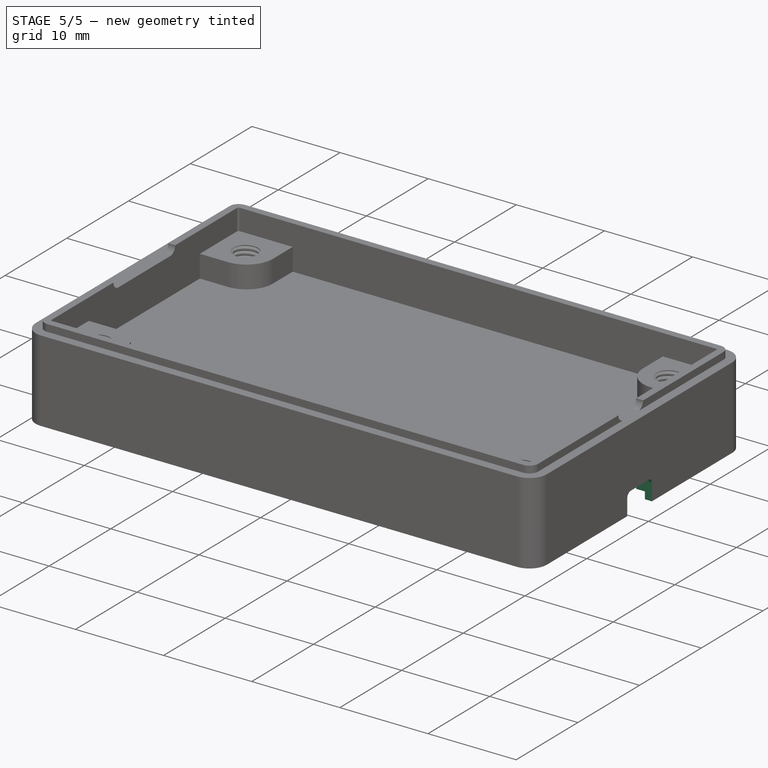
[diagram: stage 5 of 5 — iso view after this stage's code; geometry added in this stage tinted green]
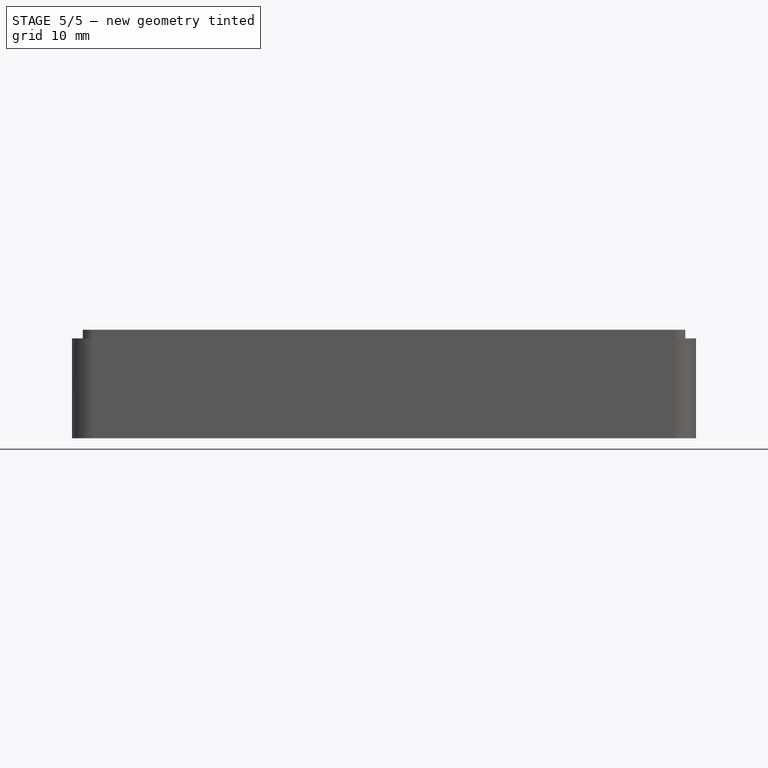
[diagram: stage 5 of 5 — front view after this stage's code; geometry added in this stage tinted green]
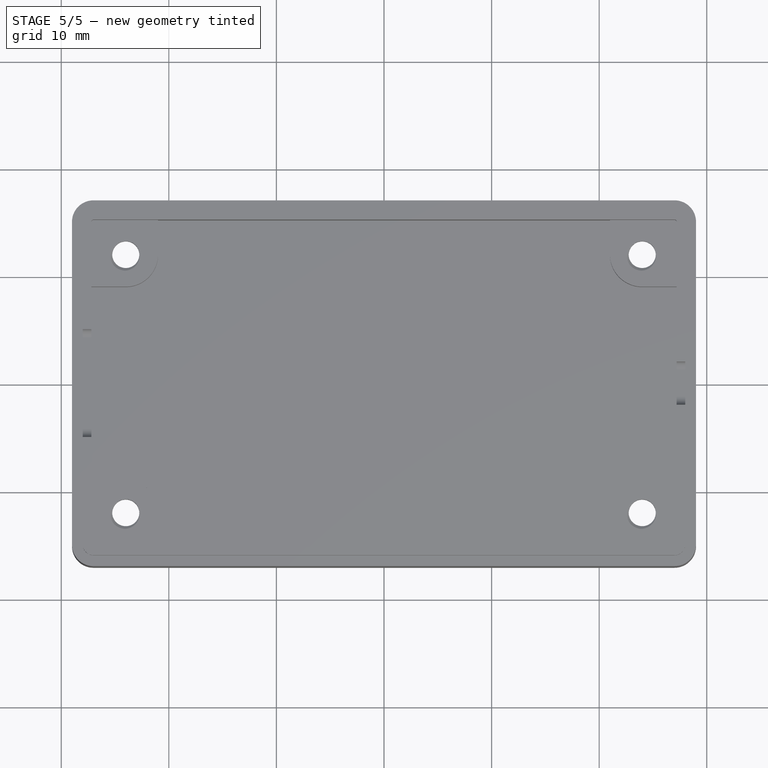
[diagram: stage 5 of 5 — top view after this stage's code; geometry added in this stage tinted green]
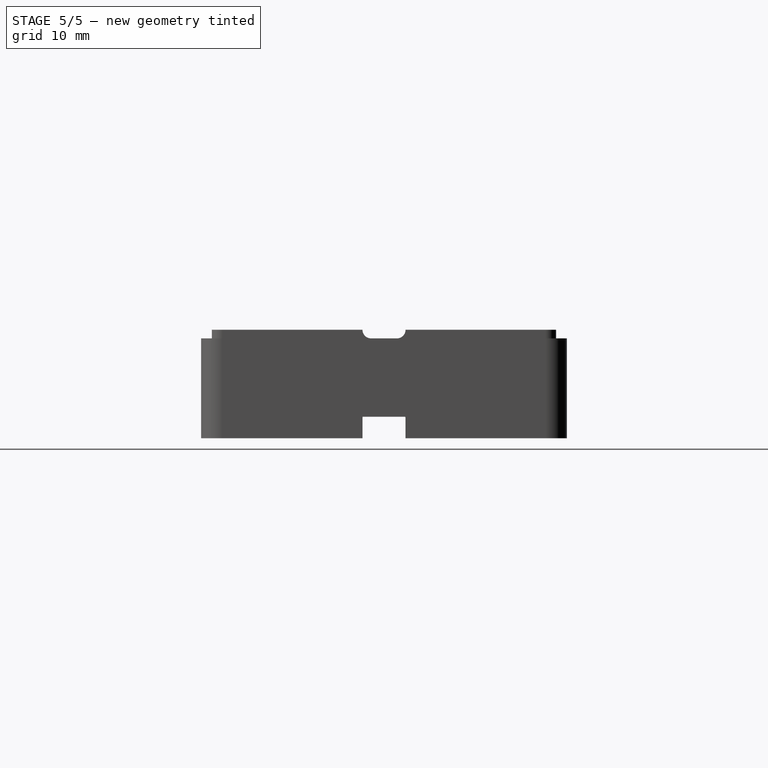
[diagram: stage 5 of 5 — right view after this stage's code; geometry added in this stage tinted green]
FEATURE [Sketcher::SketchObject] Sketch011
  ArcFitTolerance = 1e-06
  AttachmentSupport = -> [Pad008]
  FullyConstrained = true
  MakeInternals = false
  MapMode = 5
  Placement = pos=(0,0,1.8) rot=(0,0,1;0rad)
  sketch-geometry (9):
    g0: LineSegment [constr] StartX=-24 StartY=-12 StartZ=0 EndX=24 EndY=-12 EndZ=0
    g1: LineSegment [constr] StartX=24 StartY=-12 StartZ=0 EndX=24 EndY=12 EndZ=0
    g2: LineSegment [constr] StartX=24 StartY=12 StartZ=0 EndX=-24 EndY=12 EndZ=0
    g3: LineSegment [constr] StartX=-24 StartY=12 StartZ=0 EndX=-24 EndY=-12 EndZ=0
    g4: GeomPoint [constr] X=0 Y=0 Z=0
    g5: Circle CenterX=-24 CenterY=12 CenterZ=0 NormalX=0 NormalY=0 NormalZ=1 AngleXU=0 Radius=1.25
    g6: Circle CenterX=-24 CenterY=-12 CenterZ=0 NormalX=0 NormalY=0 NormalZ=1 AngleXU=0 Radius=1.25
    g7: Circle CenterX=24 CenterY=-12 CenterZ=0 NormalX=0 NormalY=0 NormalZ=1 AngleXU=0 Radius=1.25
    g8: Circle CenterX=24 CenterY=12 CenterZ=0 NormalX=0 NormalY=0 NormalZ=1 AngleXU=0 Radius=1.25
  constraints (20):
    c: Coincident(g0,g1)
    c: Coincident(g1,g2)
    c: Coincident(g2,g3)
    c: Coincident(g3,g0)
    c: Horizontal(g0)
    c: Horizontal(g2)
    c: Vertical(g1)
    c: Vertical(g3)
    c: Symmetric(g2,g0,g4)
    c: Distance(g1,g3) = 48
    c: Distance(g0,g2) = 24
    c: Coincident(g4,g-1)
    c: Diameter(g5) = 2.5
    c: Coincident(g5,g2)
    c: Diameter(g6) = 2.5
    c: Coincident(g6,g0)
    c: Diameter(g7) = 2.5
    c: Coincident(g7,g0)
    c: Diameter(g8) = 2.5
    c: Coincident(g8,g1)
FEATURE [PartDesign::Hole] Hole001
  BaseFeature = -> Pad008
  CustomThreadClearance = 0
  Depth = 25
  DepthType = 0
  Diameter = 3.4
  DrillForDepth = false
  DrillPoint = 1
  DrillPointAngle = 118
  HoleCutCountersinkAngle = 90
  HoleCutCustomValues = false
  HoleCutDepth = 0.35
  HoleCutDiameter = 6.1
  HoleCutType = 3
  ModelThread = false
  Profile = -> Sketch011
  Refine = true
  Suppressed = false
  Tapered = false
  TaperedAngle = 90
  ThreadClass = 0
  ThreadDepth = 25
  ThreadDepthType = 0
  ThreadDirection = 0
  ThreadFit = 0
  ThreadSize = 9
  ThreadType = 1
  Threaded = false
  UseCustomThreadClearance = false
FEATURE [PartDesign::Fillet] Fillet001
  Base = -> Hole001 [Edge8]
  BaseFeature = -> Hole001
  Radius = 0.24
  Refine = true
  SupportTransform = false
  Suppressed = false
  UseAllEdges = false
FEATURE [Sketcher::SketchObject] Sketch012
  ArcFitTolerance = 1e-06
  AttachmentSupport = -> [Fillet001]
  ExternalGeometry = -> [Fillet001]
  FullyConstrained = false
  MakeInternals = false
  MapMode = 5
  Placement = pos=(29,0,1.78e-14) rot=(0.57735,0.57735,0.57735;2.0944rad)
  sketch-geometry (11):
    g0: GeomPoint [constr] X=0 Y=-3.34 Z=0
    g1: GeomPoint [constr] X=0 Y=-2.34 Z=0
    g2: LineSegment StartX=-2 StartY=-3.74 StartZ=0 EndX=2 EndY=-3.74 EndZ=0
    g3: LineSegment StartX=2 StartY=-3.74 StartZ=0 EndX=2 EndY=-1.5 EndZ=0
    g4: LineSegment StartX=1.44 StartY=-0.94 StartZ=0 EndX=-1.44 EndY=-0.94 EndZ=0
    g5: LineSegment StartX=-2 StartY=-1.5 StartZ=0 EndX=-2 EndY=-3.74 EndZ=0
    g6: GeomPoint [constr] X=0 Y=-2.34 Z=0
    g7: ArcOfCircle CenterX=-1.44 CenterY=-1.5 CenterZ=0 NormalX=0 NormalY=0 NormalZ=1 AngleXU=0 Radius=0.56 StartAngle=1.5708 EndAngle=3.14159
    g8: GeomPoint [constr] X=-2 Y=-0.94 Z=0
    g9: ArcOfCircle CenterX=1.44 CenterY=-1.5 CenterZ=0 NormalX=0 NormalY=0 NormalZ=1 AngleXU=0 Radius=0.56 StartAngle=0 EndAngle=1.5708
    g10: GeomPoint [constr] X=2 Y=-0.94 Z=0
  constraints (22):
    c: PointOnObject(g0,g-2)
    c: PointOnObject(g0,g-3)
    c: PointOnObject(g1,g-2)
    c: DistanceY(g0,g1) = 1
    c: Coincident(g2,g3)
    c: Coincident(g5,g2)
    c: Horizontal(g2)
    c: Horizontal(g4)
    c: Vertical(g3)
    c: Vertical(g5)
    c: Symmetric(g10,g2,g6)
    c: Distance(g3,g5) = 4
    c: Distance(g2,g8) = 2.8
    c: Coincident(g6,g1)
    c: PointOnObject(g8,g4)
    c: PointOnObject(g8,g5)
    c: Tangent(g4,g7) = -1.5708
    c: Tangent(g5,g7) = -1.5708
    c: PointOnObject(g10,g4)
    c: PointOnObject(g10,g3)
    c: Tangent(g4,g9) = -1.5708
    c: Tangent(g3,g9) = -1.5708
FEATURE [PartDesign::Pocket] Pocket001
  BaseFeature = -> Fillet001
  Direction = (-1,0,0)
  Length = 2
  Length2 = 5
  Profile = -> Sketch012
  ReferenceAxis = -> Sketch012 [N_Axis]
  Refine = true
  Suppressed = false
  Type = 0
FEATURE [Sketcher::SketchObject] Sketch013
  ArcFitTolerance = 1e-06
  AttachmentSupport = -> [Pocket001]
  ExternalGeometry = -> [Pocket001]
  FullyConstrained = false
  MakeInternals = false
  MapMode = 5
  Placement = pos=(-29,0,1.82e-14) rot=(0.57735,-0.57735,-0.57735;2.0944rad)
  sketch-geometry (11):
    g0: GeomPoint [constr] X=0 Y=-3.34 Z=0
    g1: GeomPoint [constr] X=0 Y=-2.34 Z=0
    g2: LineSegment StartX=-5 StartY=-3.34 StartZ=0 EndX=5 EndY=-3.34 EndZ=0
    g3: LineSegment StartX=5 StartY=-3.34 StartZ=0 EndX=5 EndY=-2.00168 EndZ=0
    g4: LineSegment StartX=4.33832 StartY=-1.34 StartZ=0 EndX=-4.34 EndY=-1.34 EndZ=0
    g5: LineSegment StartX=-5 StartY=-2 StartZ=0 EndX=-5 EndY=-3.34 EndZ=0
    g6: GeomPoint [constr] X=0 Y=-2.34 Z=0
    g7: ArcOfCircle CenterX=-4.34 CenterY=-2 CenterZ=0 NormalX=0 NormalY=0 NormalZ=1 AngleXU=0 Radius=0.66 StartAngle=1.5708 EndAngle=3.14159
    g8: GeomPoint [constr] X=-5 Y=-1.34 Z=0
    g9: ArcOfCircle CenterX=4.33832 CenterY=-2.00168 CenterZ=0 NormalX=0 NormalY=0 NormalZ=1 AngleXU=0 Radius=0.661683 StartAngle=0 EndAngle=1.5708
    g10: GeomPoint [constr] X=5 Y=-1.34 Z=0
  constraints (21):
    c: PointOnObject(g0,g-3)
    c: PointOnObject(g1,g-2)
    c: DistanceY(g0,g1) = 1
    c: Coincident(g2,g3)
    c: Coincident(g5,g2)
    c: Horizontal(g2)
    c: Horizontal(g4)
    c: Vertical(g3)
    c: Vertical(g5)
    c: Symmetric(g10,g2,g6)
    c: Distance(g3,g5) = 10
    c: Distance(g2,g8) = 2
    c: Coincident(g6,g1)
    c: PointOnObject(g8,g5)
    c: PointOnObject(g8,g4)
    c: Tangent(g5,g7) = -1.5708
    c: Tangent(g4,g7) = -1.5708
    c: PointOnObject(g10,g3)
    c: PointOnObject(g10,g4)
    c: Tangent(g3,g9) = -1.5708
    c: Tangent(g4,g9) = -1.5708
FEATURE [PartDesign::Pocket] Pocket002
  BaseFeature = -> Pocket001
  Direction = (1,0,0)
  Length = 2
  Length2 = 5
  Profile = -> Sketch013
  ReferenceAxis = -> Sketch013 [N_Axis]
  Refine = true
  Suppressed = false
  Type = 0
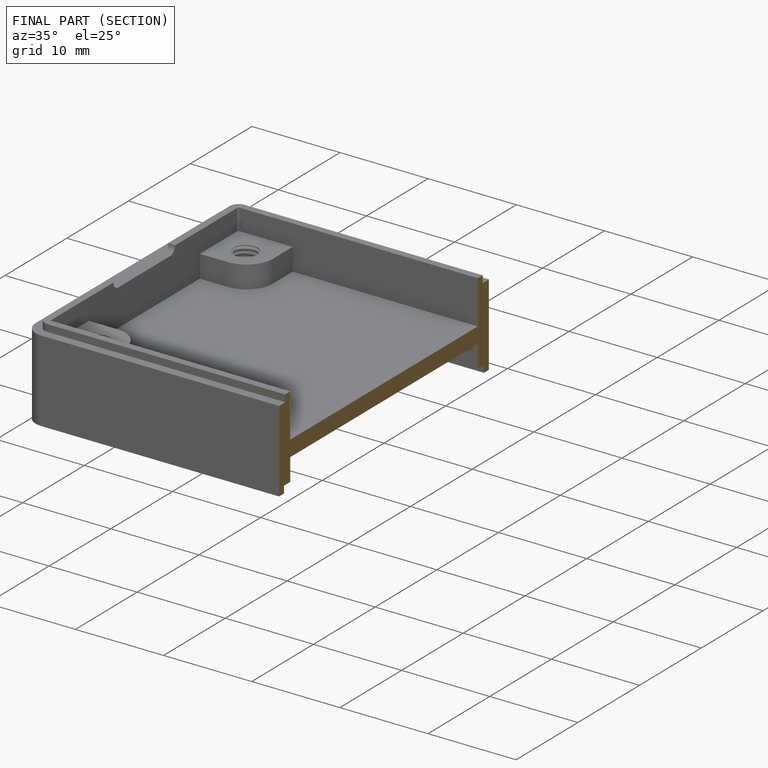
[diagram: finished part — half-section view (interior)]
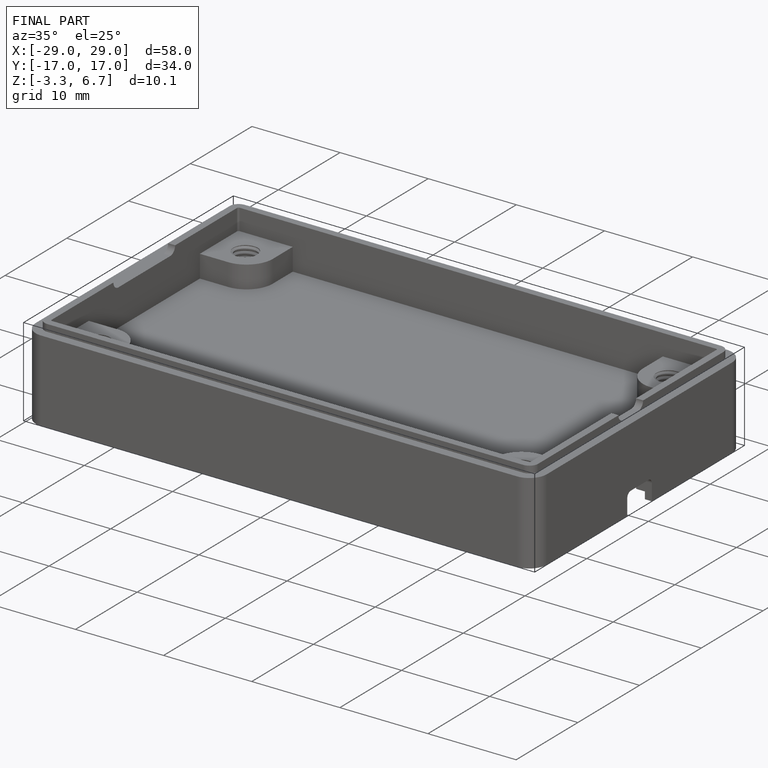
[diagram: finished part — iso view with bounding-box wireframe]
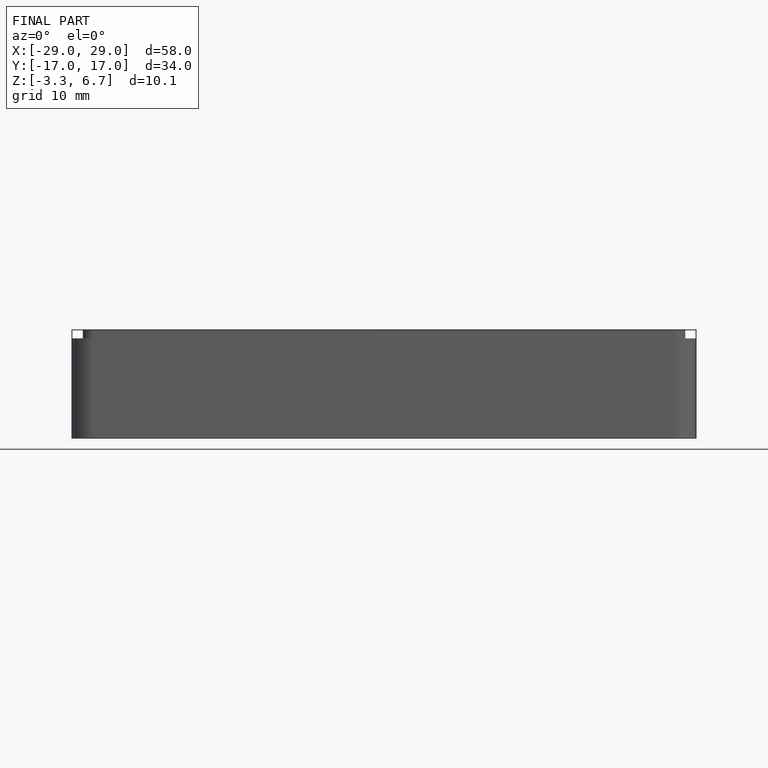
[diagram: finished part — front view with bounding-box wireframe]
